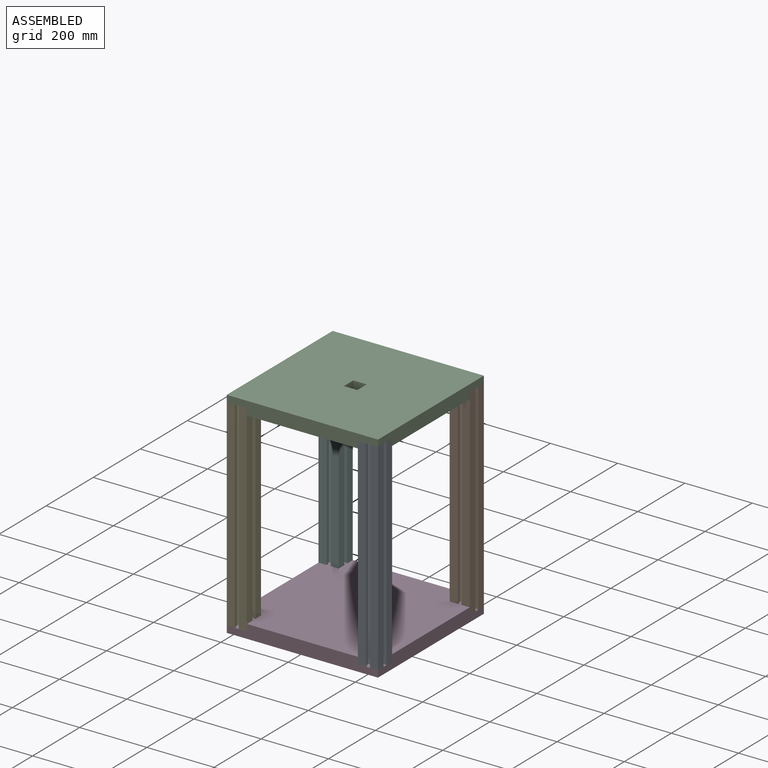
[diagram: assembled view]
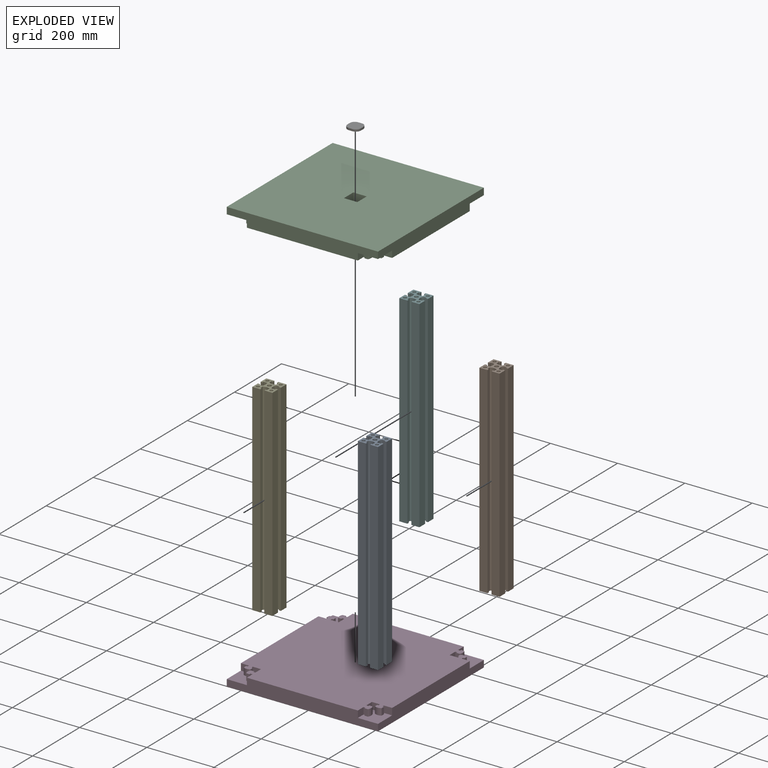
[diagram: exploded view]
GUIDED TOUR — MATED ASSEMBLY (Onshape document 71d08ee209d95e1a5b1e7e5a, AutoMate assembly 71d08ee209d95e1a5b1e7e5a_0065f6fbd1fd376b3fc1d47d_b340e007152930eded47f04c_default)

This assembly has 7 components, labeled P0..P6 below (a component is one placed occurrence of a part; the same part can appear more than once), held together by 18 mates. A mate is a constraint between two components; its type names the relative motion it leaves free:
  PARALLEL — keeps the two listed directions parallel,
  PLANAR — leaves sliding in the plane through the listed point (normal = the listed direction) and rotation about that normal free,
  SLIDER — leaves translation along the listed axis free.
Axis/direction vectors are unit vectors and 'through' points are millimeter coordinates, both in the assembly's world frame.

MATES
  1. PLANAR "Planar 2": P4 <-> P3, direction (0.000, 1.000, 0.000) through (-177.00, -165.00, 280.00) mm
  2. PLANAR "Planar 5": P0 <-> P3, direction (0.000, 1.000, 0.000) through (213.00, -165.00, 280.00) mm
  3. PLANAR "Planar 8": P1 <-> P3, direction (0.000, -1.000, 0.000) through (177.00, 165.00, 280.00) mm
  4. PLANAR "Planar 13": P2 <-> P4, direction (0.000, 0.000, -1.000) through (-197.08, -197.08, 580.00) mm
  5. PLANAR "Planar 16": P4 <-> P3, direction (0.000, 0.000, -1.000) through (-195.00, -195.00, -20.00) mm
  6. PLANAR "Planar 11": P5 <-> P3, direction (0.000, -1.000, 0.000) through (-213.00, 165.00, 280.00) mm
  7. PLANAR "Planar 14": P2 <-> P4, direction (-1.000, 0.000, 0.000) through (-165.00, -213.00, 570.00) mm
  8. PLANAR "Planar 17": P0 <-> P3, direction (0.000, 0.000, -1.000) through (195.00, -195.00, -20.00) mm
  9. SLIDER "Slider 1": P6 <-> P2, axis (0.000, 0.000, -1.000) through (0.00, 0.00, 570.90) mm
  10. PLANAR "Planar 1": P6 <-> P2, direction (0.000, 0.000, -1.000) through (0.00, 0.00, 570.00) mm
  11. PLANAR "Planar 9": P1 <-> P3, direction (-1.000, 0.000, 0.000) through (165.00, 213.00, 280.00) mm
  12. PLANAR "Planar 19": P5 <-> P3, direction (0.000, 0.000, -1.000) through (-195.00, 195.00, -20.00) mm
  13. PLANAR "Planar 3": P4 <-> P3, direction (1.000, 0.000, 0.000) through (-165.00, -213.00, 280.00) mm
  14. PLANAR "Planar 15": P2 <-> P4, direction (0.000, -1.000, 0.000) through (-213.00, -165.00, 570.00) mm
  15. PARALLEL "Parallel 1": P2 <-> P5, direction (0.000, 0.000, -1.000) through (-197.08, -197.08, 580.00) mm
  16. PLANAR "Planar 6": P0 <-> P3, direction (-1.000, 0.000, 0.000) through (165.00, -213.00, 280.00) mm
  17. PLANAR "Planar 18": P1 <-> P3, direction (0.000, 0.000, -1.000) through (195.00, 195.00, -20.00) mm
  18. PLANAR "Planar 12": P5 <-> P3, direction (1.000, 0.000, 0.000) through (-165.00, 213.00, 280.00) mm

ASSEMBLY ORDER
  1. P0 — the base component [order heuristic]
  2. P4 — core [order heuristic]
  3. P1 — core [order heuristic]
  4. P5 — core [order heuristic]
  5. P2 — core [order heuristic]
  6. P6 [order verified]
  7. P3 [order verified]
Order-tag legend:
  [order verified] — this step's position reverses a verified removal order: the component was checked to insert without passing through the ones already placed.
  [order heuristic] — the first 5 components form the assembly's core: parts whose collision-free extraction could not be verified, listed in mate-graph order.

Of the 7 components, 7 carry the full construction recipe — the FeatureScript program that regenerates the part's solid from scratch; the rest are supplied as boundary geometry only.
Each toured component is shown spotlighted twice — in the assembled view, then in the exploded view, where a leader line traces a displaced component back to its assembled socket (saturated green if recipe-attached, orange if geometry-only; every other component desaturated gray) — followed by its recipe or geometry summary and the mates that hold it.
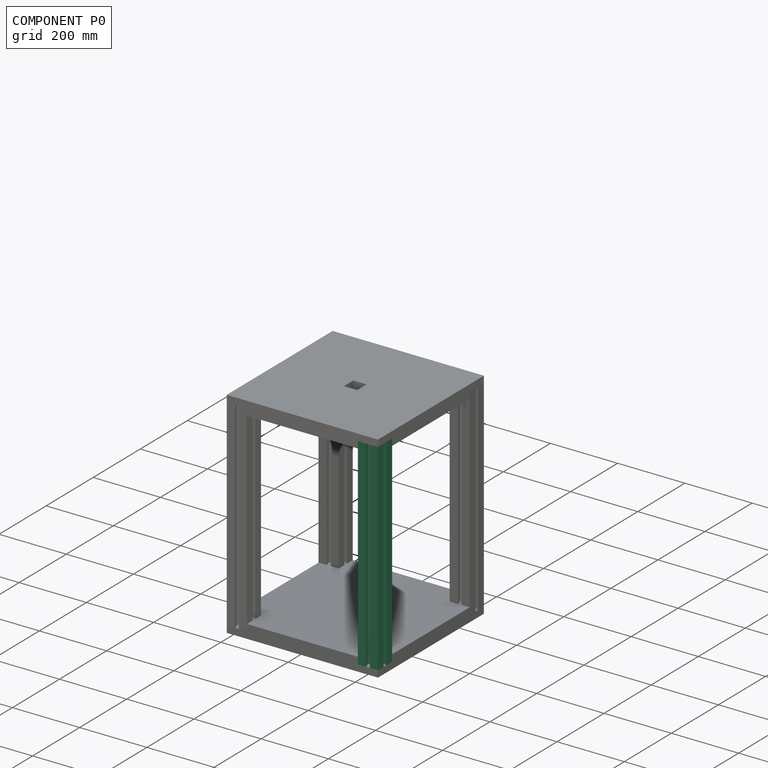
[diagram: component P0 — assembled]
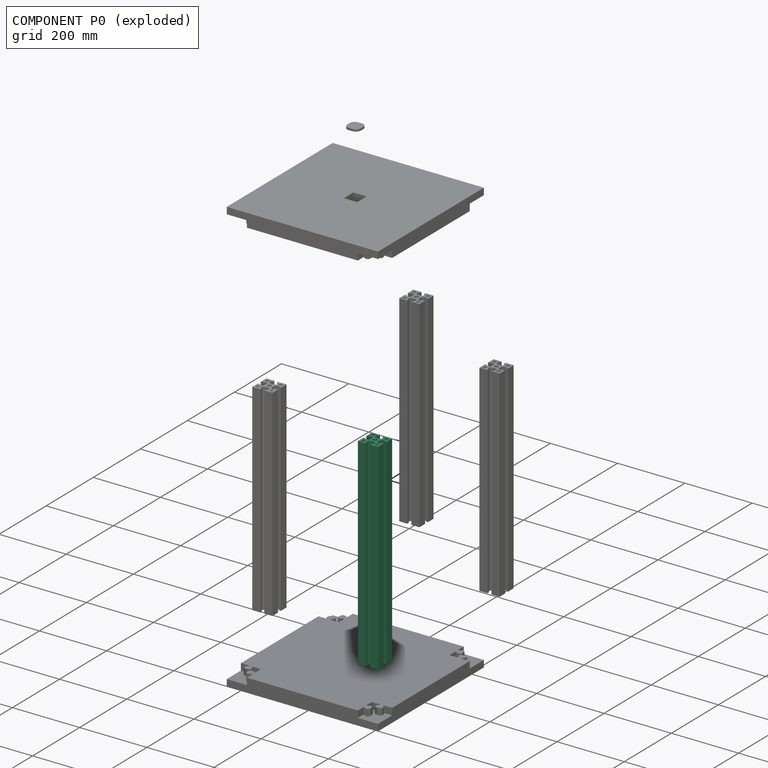
[diagram: component P0 — exploded]
COMPONENT P0 — recipe-attached (CADFS 00656253, mesh-verified: the recipe's output STEP matches this component's geometry to below the mesh-comparison resolution (tessellation chordal tolerance ~0.909 mm)).
Held by: PLANAR mate "Planar 5" to P3; PLANAR mate "Planar 17" to P3; PLANAR mate "Planar 6" to P3.
Construction recipe (FeatureScript — the CAD program that rebuilds this solid; sketch coordinates are in the units given by the * unit suffixes, e.g. mm):

FeatureScript 1511;
import(path : "onshape/std/geometry.fs", version : "1511.0");
import(path : "onshape/std/common.fs", version : "1511.0");
const mm = millimeter;
const VERTEX = EntityType.VERTEX;
const EDGE = EntityType.EDGE;
const FACE = EntityType.FACE;
const BODY = EntityType.BODY;
function v(x, y){return vector(x, y);}
function OD(order){return orderDisambiguation(order);}
function OSD(set){return originalSetDisambiguation(set);}
function TD(topology){return topologyDisambiguation(topology);}
function TDD(query){return trueDependencyDisambiguation(query);}
function sQuery(a, b, c) {return sketchEntityQuery(a, b, c);}

annotation { "Feature Type Name" : "Feature", "Feature Type Description" : "" }
export const myFeature = defineFeature(function(context is Context, id is Id, definition is map)
    precondition{}
    {
        {
            var Q0;
            Q0=qCreatedBy(makeId("Top.planeOp"),FACE);
            var sketch = newSketch(context, id + "F0", { "sketchPlane" : qUnion([Q0])});
            skLineSegment(sketch, "E0.bottom", {"start": v(30, 30) * mm, "end": v(6, 30) * mm});
            skLineSegment(sketch, "E0.top", {"start": v(30, -30) * mm, "end": v(6, -30) * mm});
            skLineSegment(sketch, "E0.left", {"start": v(30, 30) * mm, "end": v(30, 6) * mm});
            skLineSegment(sketch, "E0.right", {"start": v(-30, 30) * mm, "end": v(-30, 6) * mm});
            skPoint(sketch, "E0.middle", {"position": v(0, 0) * mm});
            skCircle(sketch, "E1", {"center": v(20, -20) * mm, "radius": 5 * mm});
            skCircle(sketch, "E2", {"center": v(20, 20) * mm, "radius": 5 * mm});
            skLineSegment(sketch, "E3", {"start": v(0, -30) * mm, "end": v(0, 30) * mm});
            skLineSegment(sketch, "E4", {"start": v(6, 30) * mm, "end": v(6, 24) * mm});
            skLineSegment(sketch, "E5", {"start": v(6, 24) * mm, "end": v(10, 24) * mm});
            skLineSegment(sketch, "E6", {"start": v(10, 24) * mm, "end": v(10, 14) * mm});
            skCircle(sketch, "E7", {"center": v(0, 0) * mm, "radius": 6 * mm});
            skLineSegment(sketch, "E8.MirrorCS", {"start": v(-6, 30) * mm, "end": v(-6, 24) * mm});
            skLineSegment(sketch, "E9.MirrorCS", {"start": v(-6, 24) * mm, "end": v(-10, 24) * mm});
            skLineSegment(sketch, "E10.MirrorCS", {"start": v(-10, 24) * mm, "end": v(-10, 14) * mm});
            skLineSegment(sketch, "E11.MirrorCS", {"start": v(-10, -24) * mm, "end": v(-10, -14) * mm});
            skArc(sketch, "E12.MirrorCS", {"start": v(-10, -14) * mm, "mid": v(0, -11.32) * mm, "end": v(10, -14) * mm});
            skLineSegment(sketch, "E13.MirrorCS", {"start": v(10, -24) * mm, "end": v(10, -14) * mm});
            skLineSegment(sketch, "E14.MirrorCS", {"start": v(6, -24) * mm, "end": v(10, -24) * mm});
            skLineSegment(sketch, "E15.MirrorCS", {"start": v(6, -30) * mm, "end": v(6, -24) * mm});
            skLineSegment(sketch, "E16.MirrorCS", {"start": v(-6, -30) * mm, "end": v(-6, -24) * mm});
            skLineSegment(sketch, "E17.MirrorCS", {"start": v(-6, -24) * mm, "end": v(-10, -24) * mm});
            skLineSegment(sketch, "E18.2.1", {"start": v(-30, 6) * mm, "end": v(-24, 6) * mm});
            skLineSegment(sketch, "E18.2.2", {"start": v(-24, 6) * mm, "end": v(-24, 10) * mm});
            skLineSegment(sketch, "E18.2.3", {"start": v(-24, 10) * mm, "end": v(-14, 10) * mm});
            skArc(sketch, "E18.2.4", {"start": v(-14, -10) * mm, "mid": v(-11.13, 0) * mm, "end": v(-14, 10) * mm});
            skLineSegment(sketch, "E18.2.5", {"start": v(-24, -10) * mm, "end": v(-14, -10) * mm});
            skLineSegment(sketch, "E18.2.6", {"start": v(-30, -6) * mm, "end": v(-24, -6) * mm});
            skLineSegment(sketch, "E18.2.7", {"start": v(-24, -6) * mm, "end": v(-24, -10) * mm});
            skLineSegment(sketch, "E19.MirrorCS", {"start": v(24, 10) * mm, "end": v(14, 10) * mm});
            skLineSegment(sketch, "E20.MirrorCS", {"start": v(30, 6) * mm, "end": v(24, 6) * mm});
            skLineSegment(sketch, "E21.MirrorCS", {"start": v(24, 6) * mm, "end": v(24, 10) * mm});
            skArc(sketch, "E22.MirrorCS", {"start": v(14, -10) * mm, "mid": v(11.13, 0) * mm, "end": v(14, 10) * mm});
            skLineSegment(sketch, "E23.MirrorCS", {"start": v(24, -10) * mm, "end": v(14, -10) * mm});
            skLineSegment(sketch, "E24.MirrorCS", {"start": v(24, -6) * mm, "end": v(24, -10) * mm});
            skLineSegment(sketch, "E25.MirrorCS", {"start": v(30, -6) * mm, "end": v(24, -6) * mm});
            skCircle(sketch, "E26.MirrorC", {"center": v(-20, -20) * mm, "radius": 5 * mm});
            skCircle(sketch, "E27.MirrorC", {"center": v(-20, 20) * mm, "radius": 5 * mm});
            skLineSegment(sketch, "E28.trimOffspring", {"start": v(-6, 30) * mm, "end": v(-30, 30) * mm});
            skLineSegment(sketch, "E29.trimOffspring", {"start": v(30, -6) * mm, "end": v(30, -30) * mm});
            skLineSegment(sketch, "E30.trimOffspring", {"start": v(-30, -6) * mm, "end": v(-30, -30) * mm});
            skLineSegment(sketch, "E31.trimOffspring", {"start": v(-6, -30) * mm, "end": v(-30, -30) * mm});
            skArc(sketch, "E32", {"start": v(-10, 14) * mm, "mid": v(0, 11.32) * mm, "end": v(10, 14) * mm});
            skSolve(sketch);
        }
        {
            var Q0;
            Q0=makeQuery(id+"F0.imprint","IMPRINT",FACE,{"disambiguationData":[TD([[makeQuery(id+"F0.imprint","IMPRINT",EDGE,{"derivedFrom":sQuery(id+"F0.wireOp",EDGE,"E0.bottom")}),1.0]])]});
            var Q1;
            Q1=makeQuery(id+"F0.imprint","IMPRINT",FACE,{"disambiguationData":[TD([[makeQuery(id+"F0.imprint","IMPRINT",EDGE,{"derivedFrom":sQuery(id+"F0.wireOp",EDGE,"E0.right")}),1.0]])]});
            extrude(context, id + "F1", {"entities" : qUnion([Q0, Q1]), "depth" : 600 * mm, "offsetDistance" : 25 * mm});
        }
    });
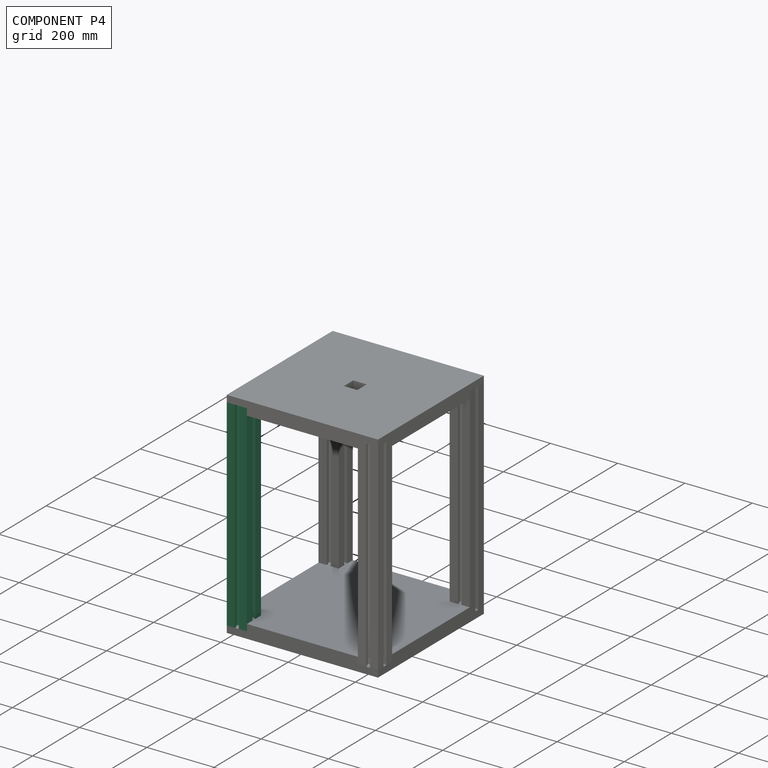
[diagram: component P4 — assembled]
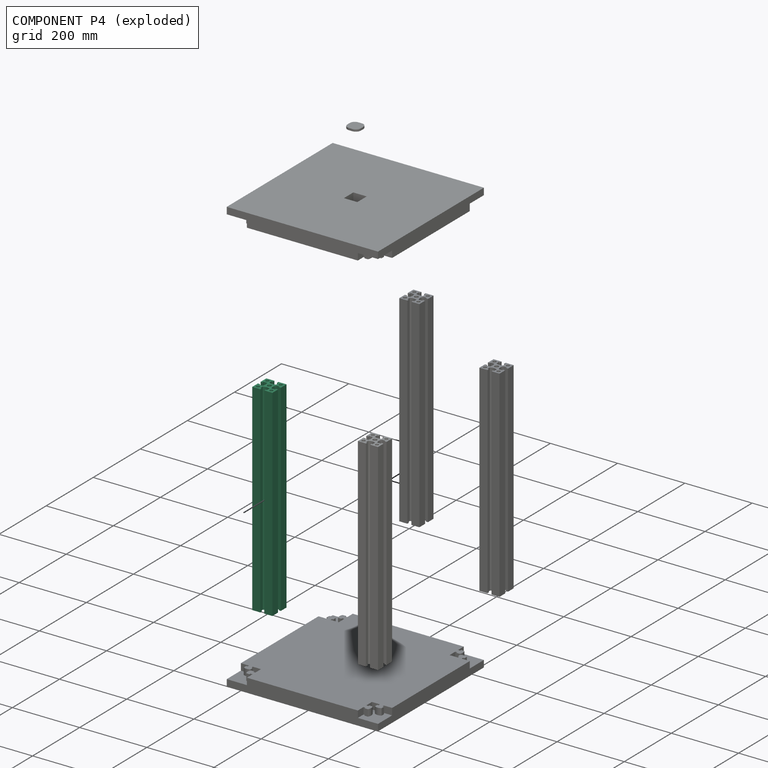
[diagram: component P4 — exploded]
COMPONENT P4 — same part as P0 (CADFS 00656253); its construction recipe is shown at P0.
Held by: PLANAR mate "Planar 2" to P3; PLANAR mate "Planar 13" to P2; PLANAR mate "Planar 16" to P3; PLANAR mate "Planar 14" to P2; PLANAR mate "Planar 3" to P3; PLANAR mate "Planar 15" to P2.
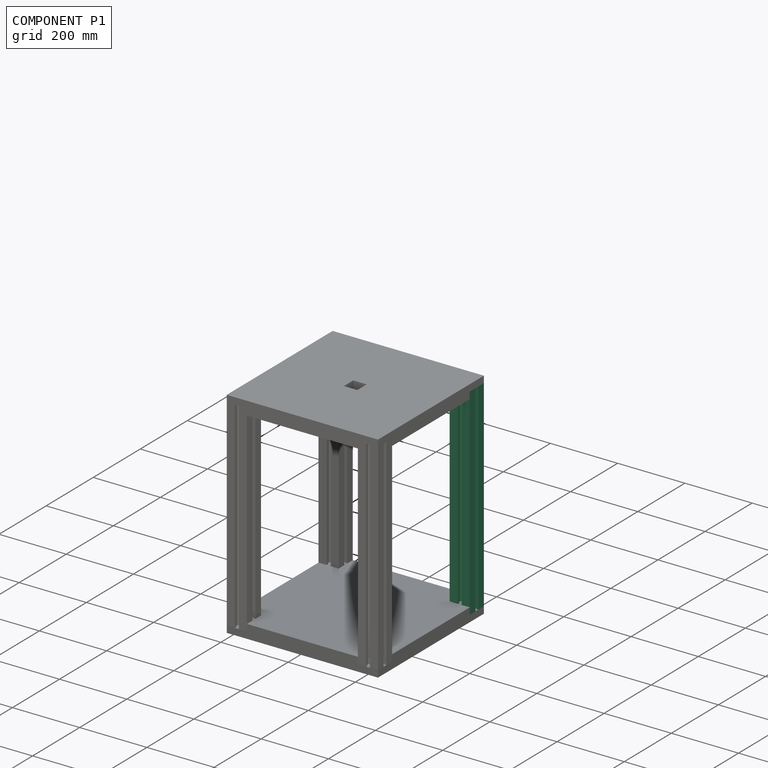
[diagram: component P1 — assembled]
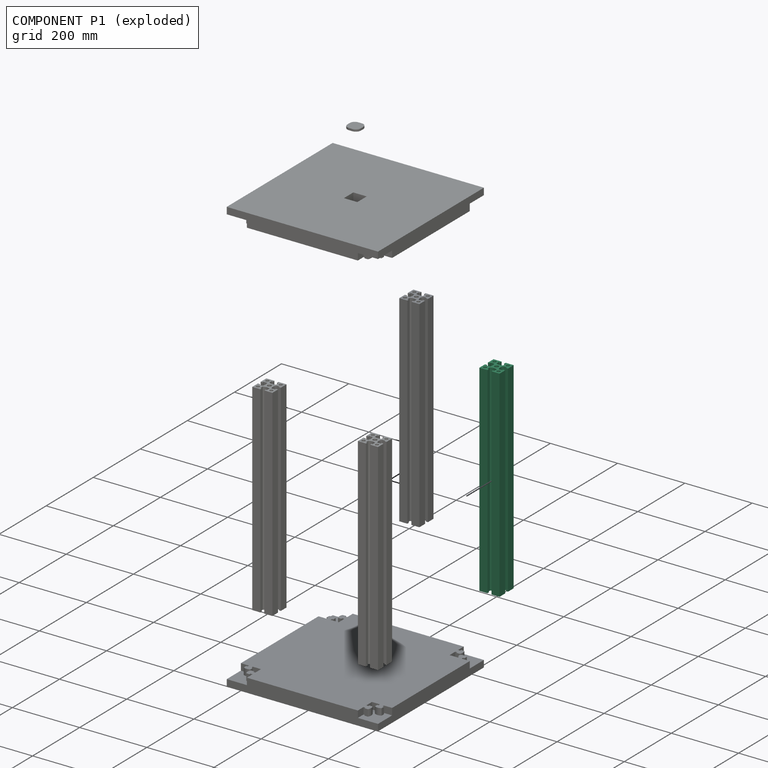
[diagram: component P1 — exploded]
COMPONENT P1 — same part as P0 (CADFS 00656253); its construction recipe is shown at P0.
Held by: PLANAR mate "Planar 8" to P3; PLANAR mate "Planar 9" to P3; PLANAR mate "Planar 18" to P3.
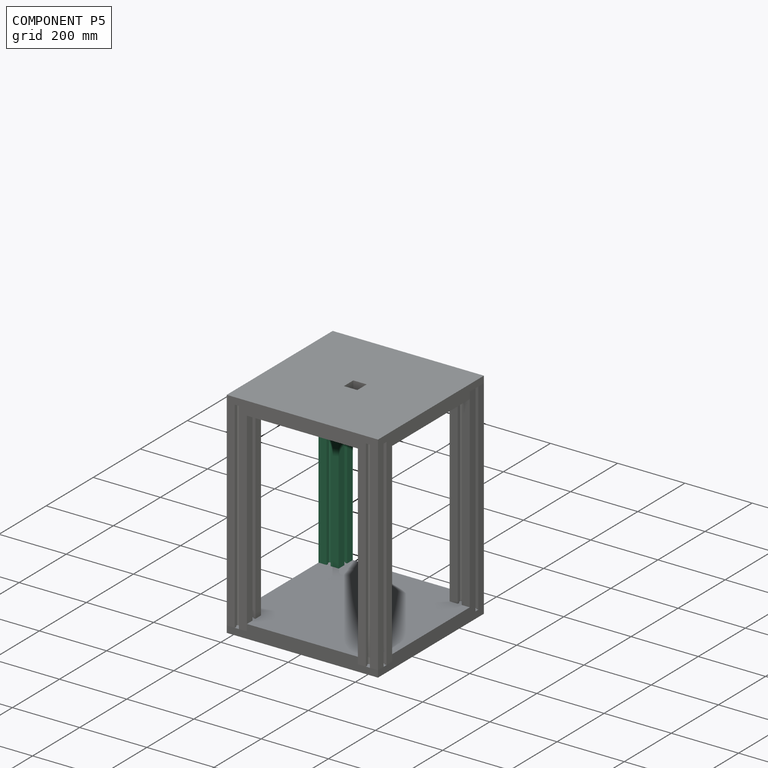
[diagram: component P5 — assembled]
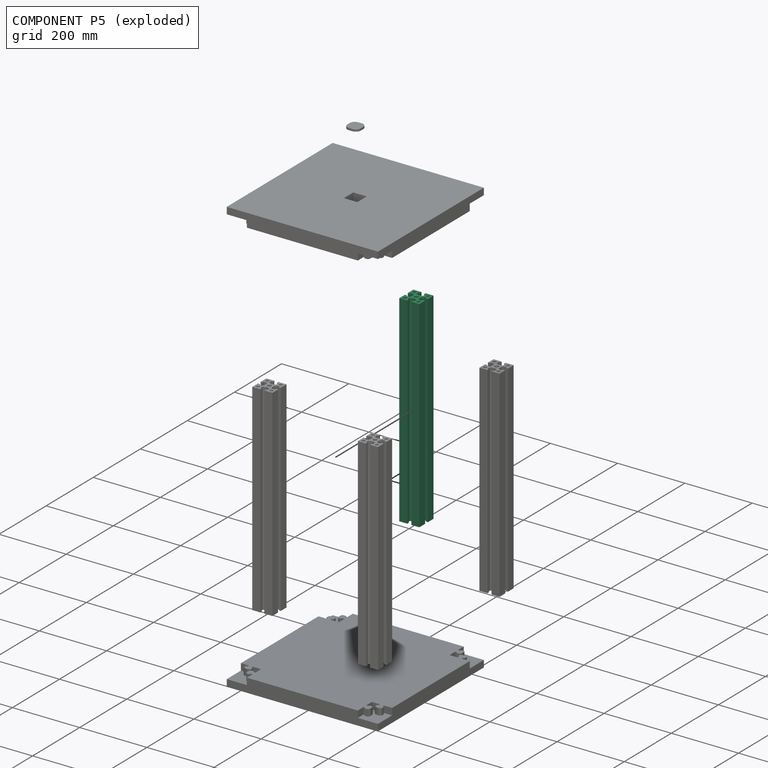
[diagram: component P5 — exploded]
COMPONENT P5 — same part as P0 (CADFS 00656253); its construction recipe is shown at P0.
Held by: PLANAR mate "Planar 11" to P3; PLANAR mate "Planar 19" to P3; PARALLEL mate "Parallel 1" to P2; PLANAR mate "Planar 12" to P3.
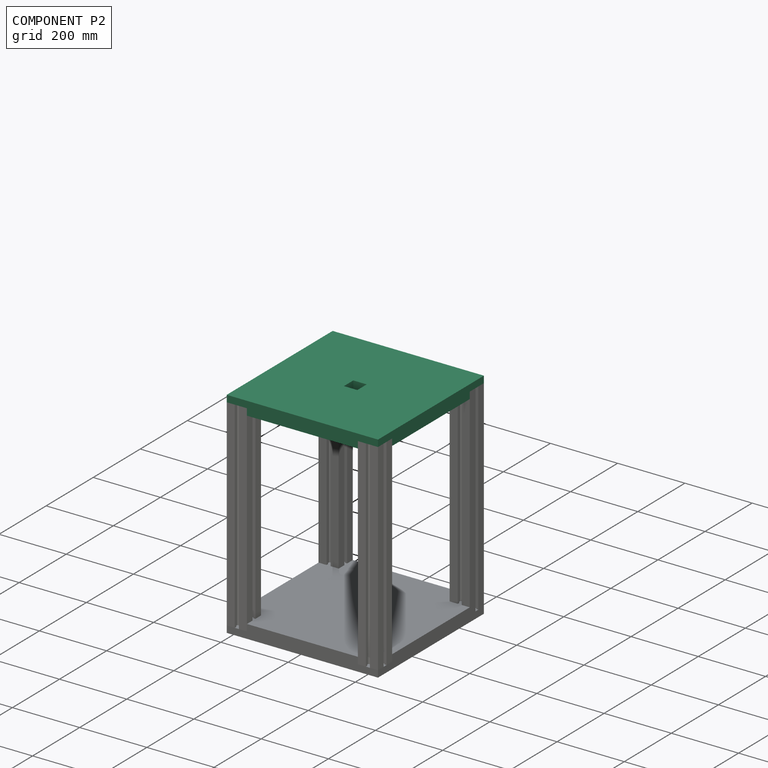
[diagram: component P2 — assembled]
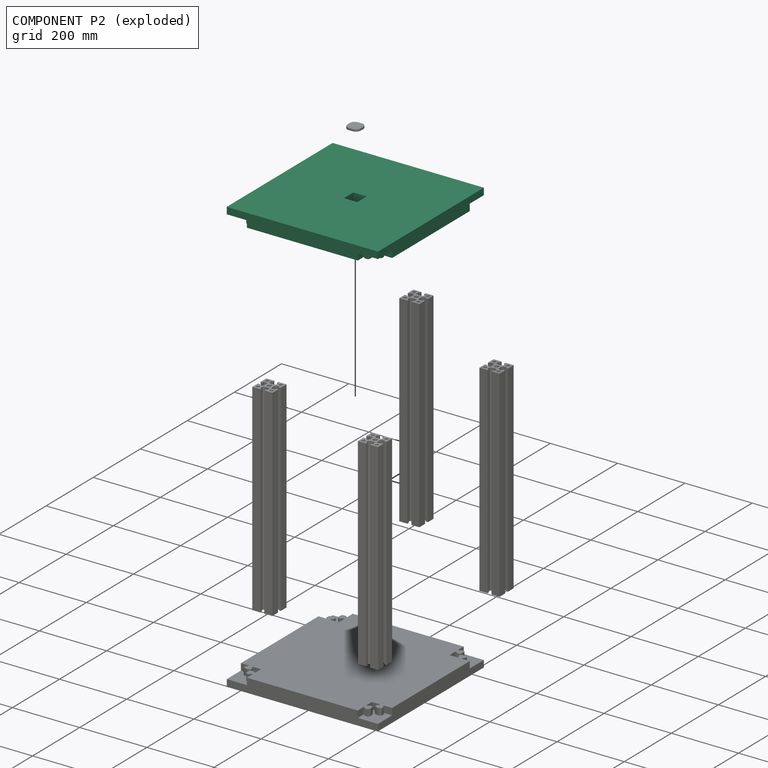
[diagram: component P2 — exploded]
COMPONENT P2 — recipe-attached (CADFS 00656255, mesh-verified: the recipe's output STEP matches this component's geometry to below the mesh-comparison resolution (tessellation chordal tolerance ~0.956 mm)).
Held by: PLANAR mate "Planar 13" to P4; PLANAR mate "Planar 14" to P4; SLIDER mate "Slider 1" to P6; PLANAR mate "Planar 1" to P6; PLANAR mate "Planar 15" to P4; PARALLEL mate "Parallel 1" to P5.
Construction recipe (FeatureScript — the CAD program that rebuilds this solid; sketch coordinates are in the units given by the * unit suffixes, e.g. mm):

FeatureScript 1511;
import(path : "onshape/std/geometry.fs", version : "1511.0");
import(path : "onshape/std/common.fs", version : "1511.0");
const mm = millimeter;
const VERTEX = EntityType.VERTEX;
const EDGE = EntityType.EDGE;
const FACE = EntityType.FACE;
const BODY = EntityType.BODY;
function v(x, y){return vector(x, y);}
function OD(order){return orderDisambiguation(order);}
function OSD(set){return originalSetDisambiguation(set);}
function TD(topology){return topologyDisambiguation(topology);}
function TDD(query){return trueDependencyDisambiguation(query);}
function sQuery(a, b, c) {return sketchEntityQuery(a, b, c);}

annotation { "Feature Type Name" : "Feature", "Feature Type Description" : "" }
export const myFeature = defineFeature(function(context is Context, id is Id, definition is map)
    precondition{}
    {
        {
            var Q0;
            Q0=qCreatedBy(makeId("Top.planeOp"),FACE);
            var sketch = newSketch(context, id + "F0", { "sketchPlane" : qUnion([Q0])});
            skLineSegment(sketch, "E0.bottom", {"start": v(225, 225) * mm, "end": v(-225, 225) * mm});
            skLineSegment(sketch, "E0.top", {"start": v(225, -225) * mm, "end": v(-225, -225) * mm});
            skLineSegment(sketch, "E0.left", {"start": v(225, 225) * mm, "end": v(225, -225) * mm});
            skLineSegment(sketch, "E0.right", {"start": v(-225, 225) * mm, "end": v(-225, -225) * mm});
            skPoint(sketch, "E0.middle", {"position": v(0, 0) * mm});
            skLineSegment(sketch, "E1", {"start": v(-225, 165) * mm, "end": v(-165, 165) * mm});
            skLineSegment(sketch, "E2", {"start": v(-165, 165) * mm, "end": v(-165, 225) * mm});
            skLineSegment(sketch, "E3.MirrorCS", {"start": v(-225, -165) * mm, "end": v(-165, -165) * mm});
            skLineSegment(sketch, "E4.MirrorCS", {"start": v(-165, -165) * mm, "end": v(-165, -225) * mm});
            skLineSegment(sketch, "E5.MirrorCS", {"start": v(165, 165) * mm, "end": v(165, 225) * mm});
            skLineSegment(sketch, "E6.MirrorCS", {"start": v(225, 165) * mm, "end": v(165, 165) * mm});
            skLineSegment(sketch, "E7.MirrorCS", {"start": v(225, -165) * mm, "end": v(165, -165) * mm});
            skLineSegment(sketch, "E8.MirrorCS", {"start": v(165, -165) * mm, "end": v(165, -225) * mm});
            skSolve(sketch);
        }
        {
            var Q0;
            {var subQ4=sQuery(id+"F0.wireOp",EDGE,"E1");Q0=makeQuery(id+"F0.imprint","IMPRINT",FACE,{"disambiguationData":[TD([[makeQuery(id+"F0.imprint","IMPRINT",EDGE,{"derivedFrom":subQ4}),-1.0]])]});}
            extrude(context, id + "F1", {"entities" : qUnion([Q0]), "depth" : 40 * mm, "offsetDistance" : 25 * mm});
        }
        {
            var Q0;
            Q0=makeQuery(id+"FjshT1yFeJQ6c4P_1.boolean.opBoolean","MERGE",FACE,{"derivedFrom":[makeQuery(id+"F1.opExtrude","CAP_FACE",FACE,{"disambiguationData":[OSD([sQuery(id+"F0.wireOp",EDGE,"E0.bottom"),sQuery(id+"F0.wireOp",EDGE,"E0.top"),sQuery(id+"F0.wireOp",EDGE,"E0.left"),sQuery(id+"F0.wireOp",EDGE,"E0.right"),sQuery(id+"F0.wireOp",EDGE,"E1"),sQuery(id+"F0.wireOp",EDGE,"E2"),sQuery(id+"F0.wireOp",EDGE,"E3.MirrorCS"),sQuery(id+"F0.wireOp",EDGE,"E4.MirrorCS"),sQuery(id+"F0.wireOp",EDGE,"E5.MirrorCS"),sQuery(id+"F0.wireOp",EDGE,"E6.MirrorCS"),sQuery(id+"F0.wireOp",EDGE,"E7.MirrorCS"),sQuery(id+"F0.wireOp",EDGE,"E8.MirrorCS")])],"isStart":false}),makeQuery(id+"FjshT1yFeJQ6c4P_1.opExtrude","CAP_FACE",FACE,{"disambiguationData":[OSD([sQuery(id+"FFJnwm880kq7QGe_1.wireOp",EDGE,"IpZQhXBL-CYih-avNn-Q1HJ-p8kexNwLDa1K"),sQuery(id+"FFJnwm880kq7QGe_1.wireOp",EDGE,"DlTROYIy-GDss-TSJb-fTrS-hMDKvWpxQDZU"),sQuery(id+"FFJnwm880kq7QGe_1.wireOp",EDGE,"bTENbA7q-pvXI-0GNu-Zogf-TinsMhO668xT"),sQuery(id+"FFJnwm880kq7QGe_1.wireOp",EDGE,"CV59ftxt-n5LR-UtjV-LxEI-1yjvkEDBIUn7"),sQuery(id+"FFJnwm880kq7QGe_1.wireOp",EDGE,"VoNmPI9z-NIw1-XeOp-dFSM-tXPidPHyete0"),sQuery(id+"FFJnwm880kq7QGe_1.wireOp",EDGE,"zehCizCF-2Cgd-Ufk7-S7Fe-3zTjVviyliAL"),sQuery(id+"FFJnwm880kq7QGe_1.wireOp",EDGE,"YVxsESHW-nWeJ-Wa03-N7XI-iGOGesEvdSq9"),sQuery(id+"FFJnwm880kq7QGe_1.wireOp",EDGE,"igbJnYST-q3vv-sdNJ-N0c4-YNNVs6zLT43V")])],"isStart":true}),makeQuery(id+"FjshT1yFeJQ6c4P_1.opExtrude","CAP_FACE",FACE,{"disambiguationData":[OSD([sQuery(id+"FFJnwm880kq7QGe_1.wireOp",EDGE,"N9AVfqYu-QtxK-6Ad7-DoZk-YeEwseCOC2Zx"),sQuery(id+"FFJnwm880kq7QGe_1.wireOp",EDGE,"2Zl7s7qh-2swf-lT0q-C8q8-jJXlbCIyUqga"),sQuery(id+"FFJnwm880kq7QGe_1.wireOp",EDGE,"SRCtbRJ9-xsi2-BQLM-Kzfs-NWcCmin3xKqc"),sQuery(id+"FFJnwm880kq7QGe_1.wireOp",EDGE,"xzpgzOg8-CJKq-86Ur-ihYN-3kbHdTykDBMx"),sQuery(id+"FFJnwm880kq7QGe_1.wireOp",EDGE,"zk2CsXnC-Ixh2-XMb2-uvDl-uLO2pCno7BXc"),sQuery(id+"FFJnwm880kq7QGe_1.wireOp",EDGE,"CIBMmwUG-xv2f-loSl-yw3Y-bWYX4MdVKxOO"),sQuery(id+"FFJnwm880kq7QGe_1.wireOp",EDGE,"J3gLb0Dn-fx33-QdcY-Dk9k-6gqs1iTMeHvz"),sQuery(id+"FFJnwm880kq7QGe_1.wireOp",EDGE,"XjeUeEMd-u2qN-USpv-2rTC-nAQxEtihIGgS")])],"isStart":true}),makeQuery(id+"FjshT1yFeJQ6c4P_1.opExtrude","CAP_FACE",FACE,{"disambiguationData":[OSD([sQuery(id+"FFJnwm880kq7QGe_1.wireOp",EDGE,"395ac73a-eb74-4218-a785-b9fae4ec757f.1.0"),sQuery(id+"FFJnwm880kq7QGe_1.wireOp",EDGE,"395ac73a-eb74-4218-a785-b9fae4ec757f.1.1"),sQuery(id+"FFJnwm880kq7QGe_1.wireOp",EDGE,"395ac73a-eb74-4218-a785-b9fae4ec757f.1.2"),sQuery(id+"FFJnwm880kq7QGe_1.wireOp",EDGE,"395ac73a-eb74-4218-a785-b9fae4ec757f.1.3"),sQuery(id+"FFJnwm880kq7QGe_1.wireOp",EDGE,"395ac73a-eb74-4218-a785-b9fae4ec757f.1.4"),sQuery(id+"FFJnwm880kq7QGe_1.wireOp",EDGE,"395ac73a-eb74-4218-a785-b9fae4ec757f.1.5"),sQuery(id+"FFJnwm880kq7QGe_1.wireOp",EDGE,"395ac73a-eb74-4218-a785-b9fae4ec757f.1.6"),sQuery(id+"FFJnwm880kq7QGe_1.wireOp",EDGE,"395ac73a-eb74-4218-a785-b9fae4ec757f.1.7")])],"isStart":true}),makeQuery(id+"FjshT1yFeJQ6c4P_1.opExtrude","CAP_FACE",FACE,{"disambiguationData":[OSD([sQuery(id+"FFJnwm880kq7QGe_1.wireOp",EDGE,"395ac73a-eb74-4218-a785-b9fae4ec757f.1.8"),sQuery(id+"FFJnwm880kq7QGe_1.wireOp",EDGE,"395ac73a-eb74-4218-a785-b9fae4ec757f.1.9"),sQuery(id+"FFJnwm880kq7QGe_1.wireOp",EDGE,"395ac73a-eb74-4218-a785-b9fae4ec757f.1.10"),sQuery(id+"FFJnwm880kq7QGe_1.wireOp",EDGE,"395ac73a-eb74-4218-a785-b9fae4ec757f.1.11"),sQuery(id+"FFJnwm880kq7QGe_1.wireOp",EDGE,"395ac73a-eb74-4218-a785-b9fae4ec757f.1.12"),sQuery(id+"FFJnwm880kq7QGe_1.wireOp",EDGE,"395ac73a-eb74-4218-a785-b9fae4ec757f.1.13"),sQuery(id+"FFJnwm880kq7QGe_1.wireOp",EDGE,"395ac73a-eb74-4218-a785-b9fae4ec757f.1.14"),sQuery(id+"FFJnwm880kq7QGe_1.wireOp",EDGE,"395ac73a-eb74-4218-a785-b9fae4ec757f.1.15")])],"isStart":true}),makeQuery(id+"FjshT1yFeJQ6c4P_1.opExtrude","CAP_FACE",FACE,{"disambiguationData":[OSD([sQuery(id+"FFJnwm880kq7QGe_1.wireOp",EDGE,"395ac73a-eb74-4218-a785-b9fae4ec757f.2.0"),sQuery(id+"FFJnwm880kq7QGe_1.wireOp",EDGE,"395ac73a-eb74-4218-a785-b9fae4ec757f.2.1"),sQuery(id+"FFJnwm880kq7QGe_1.wireOp",EDGE,"395ac73a-eb74-4218-a785-b9fae4ec757f.2.2"),sQuery(id+"FFJnwm880kq7QGe_1.wireOp",EDGE,"395ac73a-eb74-4218-a785-b9fae4ec757f.2.3"),sQuery(id+"FFJnwm880kq7QGe_1.wireOp",EDGE,"395ac73a-eb74-4218-a785-b9fae4ec757f.2.4"),sQuery(id+"FFJnwm880kq7QGe_1.wireOp",EDGE,"395ac73a-eb74-4218-a785-b9fae4ec757f.2.5"),sQuery(id+"FFJnwm880kq7QGe_1.wireOp",EDGE,"395ac73a-eb74-4218-a785-b9fae4ec757f.2.6"),sQuery(id+"FFJnwm880kq7QGe_1.wireOp",EDGE,"395ac73a-eb74-4218-a785-b9fae4ec757f.2.7")])],"isStart":true}),makeQuery(id+"FjshT1yFeJQ6c4P_1.opExtrude","CAP_FACE",FACE,{"disambiguationData":[OSD([sQuery(id+"FFJnwm880kq7QGe_1.wireOp",EDGE,"395ac73a-eb74-4218-a785-b9fae4ec757f.2.8"),sQuery(id+"FFJnwm880kq7QGe_1.wireOp",EDGE,"395ac73a-eb74-4218-a785-b9fae4ec757f.2.9"),sQuery(id+"FFJnwm880kq7QGe_1.wireOp",EDGE,"395ac73a-eb74-4218-a785-b9fae4ec757f.2.10"),sQuery(id+"FFJnwm880kq7QGe_1.wireOp",EDGE,"395ac73a-eb74-4218-a785-b9fae4ec757f.2.11"),sQuery(id+"FFJnwm880kq7QGe_1.wireOp",EDGE,"395ac73a-eb74-4218-a785-b9fae4ec757f.2.12"),sQuery(id+"FFJnwm880kq7QGe_1.wireOp",EDGE,"395ac73a-eb74-4218-a785-b9fae4ec757f.2.13"),sQuery(id+"FFJnwm880kq7QGe_1.wireOp",EDGE,"395ac73a-eb74-4218-a785-b9fae4ec757f.2.14"),sQuery(id+"FFJnwm880kq7QGe_1.wireOp",EDGE,"395ac73a-eb74-4218-a785-b9fae4ec757f.2.15")])],"isStart":true}),makeQuery(id+"FjshT1yFeJQ6c4P_1.opExtrude","CAP_FACE",FACE,{"disambiguationData":[OSD([sQuery(id+"FFJnwm880kq7QGe_1.wireOp",EDGE,"395ac73a-eb74-4218-a785-b9fae4ec757f.3.0"),sQuery(id+"FFJnwm880kq7QGe_1.wireOp",EDGE,"395ac73a-eb74-4218-a785-b9fae4ec757f.3.1"),sQuery(id+"FFJnwm880kq7QGe_1.wireOp",EDGE,"395ac73a-eb74-4218-a785-b9fae4ec757f.3.2"),sQuery(id+"FFJnwm880kq7QGe_1.wireOp",EDGE,"395ac73a-eb74-4218-a785-b9fae4ec757f.3.3"),sQuery(id+"FFJnwm880kq7QGe_1.wireOp",EDGE,"395ac73a-eb74-4218-a785-b9fae4ec757f.3.4"),sQuery(id+"FFJnwm880kq7QGe_1.wireOp",EDGE,"395ac73a-eb74-4218-a785-b9fae4ec757f.3.5"),sQuery(id+"FFJnwm880kq7QGe_1.wireOp",EDGE,"395ac73a-eb74-4218-a785-b9fae4ec757f.3.6"),sQuery(id+"FFJnwm880kq7QGe_1.wireOp",EDGE,"395ac73a-eb74-4218-a785-b9fae4ec757f.3.7")])],"isStart":true}),makeQuery(id+"FjshT1yFeJQ6c4P_1.opExtrude","CAP_FACE",FACE,{"disambiguationData":[OSD([sQuery(id+"FFJnwm880kq7QGe_1.wireOp",EDGE,"395ac73a-eb74-4218-a785-b9fae4ec757f.3.8"),sQuery(id+"FFJnwm880kq7QGe_1.wireOp",EDGE,"395ac73a-eb74-4218-a785-b9fae4ec757f.3.9"),sQuery(id+"FFJnwm880kq7QGe_1.wireOp",EDGE,"395ac73a-eb74-4218-a785-b9fae4ec757f.3.10"),sQuery(id+"FFJnwm880kq7QGe_1.wireOp",EDGE,"395ac73a-eb74-4218-a785-b9fae4ec757f.3.11"),sQuery(id+"FFJnwm880kq7QGe_1.wireOp",EDGE,"395ac73a-eb74-4218-a785-b9fae4ec757f.3.12"),sQuery(id+"FFJnwm880kq7QGe_1.wireOp",EDGE,"395ac73a-eb74-4218-a785-b9fae4ec757f.3.13"),sQuery(id+"FFJnwm880kq7QGe_1.wireOp",EDGE,"395ac73a-eb74-4218-a785-b9fae4ec757f.3.14"),sQuery(id+"FFJnwm880kq7QGe_1.wireOp",EDGE,"395ac73a-eb74-4218-a785-b9fae4ec757f.3.15")])],"isStart":true})]});
            var sketch = newSketch(context, id + "F2", { "sketchPlane" : qUnion([Q0])});
            skSolve(sketch);
        }
        {
            var Q0;
            Q0 = qSketchRegion(id + "F0", true);
            extrude(context, id + "F3", {"entities" : qUnion([Q0]), "operationType" : NewBodyOperationType.ADD, "depth" : 20 * mm, "offsetDistance" : 25 * mm});
        }
        {
            var Q0;
            Q0=makeQuery(id+"F2.imprint","IMPRINT",FACE,{"disambiguationData":[TD([[makeQuery(id+"F2.imprint","IMPRINT",EDGE,{"derivedFrom":makeQuery(id+"F1.opExtrude","CAP_EDGE",EDGE,{"disambiguationData":[OSD([sQuery(id+"F0.wireOp",EDGE,"E0.bottom")])],"isStart":false})}),1.0]])]});
            var sketch = newSketch(context, id + "F4", { "sketchPlane" : qUnion([Q0])});
            skLineSegment(sketch, "E9", {"start": v(-201, 165) * mm, "end": v(-201, 171) * mm});
            skLineSegment(sketch, "E10", {"start": v(-201, 171) * mm, "end": v(-205, 171) * mm});
            skLineSegment(sketch, "E11", {"start": v(-205, 171) * mm, "end": v(-205, 181) * mm});
            skLineSegment(sketch, "E12", {"start": v(-189, 165) * mm, "end": v(-189, 171) * mm});
            skLineSegment(sketch, "E13", {"start": v(-189, 171) * mm, "end": v(-185, 171) * mm});
            skLineSegment(sketch, "E14", {"start": v(-185, 171) * mm, "end": v(-185, 181) * mm});
            skLineSegment(sketch, "E15", {"start": v(-165, 189) * mm, "end": v(-171, 189) * mm});
            skLineSegment(sketch, "E16", {"start": v(-201, 165) * mm, "end": v(-189, 165) * mm});
            skArc(sketch, "E17", {"start": v(-185, 181) * mm, "mid": v(-195, 183.68) * mm, "end": v(-205, 181) * mm});
            skLineSegment(sketch, "E18", {"start": v(-165, 201) * mm, "end": v(-171, 201) * mm});
            skLineSegment(sketch, "E19", {"start": v(-171, 201) * mm, "end": v(-171, 205) * mm});
            skLineSegment(sketch, "E20", {"start": v(-171, 205) * mm, "end": v(-181, 205) * mm});
            skLineSegment(sketch, "E21", {"start": v(-171, 189) * mm, "end": v(-171, 185) * mm});
            skLineSegment(sketch, "E22", {"start": v(-171, 185) * mm, "end": v(-181, 185) * mm});
            skLineSegment(sketch, "E23", {"start": v(-165, 201) * mm, "end": v(-165, 189) * mm});
            skArc(sketch, "E24", {"start": v(-181, 205) * mm, "mid": v(-183.68, 195) * mm, "end": v(-181, 185) * mm});
            skLineSegment(sketch, "E25.1.0", {"start": v(-185, -171) * mm, "end": v(-185, -181) * mm});
            skArc(sketch, "E25.1.1", {"start": v(-205, -181) * mm, "mid": v(-195, -183.68) * mm, "end": v(-185, -181) * mm});
            skLineSegment(sketch, "E25.1.2", {"start": v(-171, -205) * mm, "end": v(-181, -205) * mm});
            skLineSegment(sketch, "E25.1.3", {"start": v(-171, -185) * mm, "end": v(-181, -185) * mm});
            skArc(sketch, "E25.1.4", {"start": v(-181, -185) * mm, "mid": v(-183.68, -195) * mm, "end": v(-181, -205) * mm});
            skLineSegment(sketch, "E25.1.5", {"start": v(-205, -171) * mm, "end": v(-205, -181) * mm});
            skLineSegment(sketch, "E25.1.6", {"start": v(-201, -165) * mm, "end": v(-189, -165) * mm});
            skLineSegment(sketch, "E25.1.7", {"start": v(-165, -201) * mm, "end": v(-165, -189) * mm});
            skLineSegment(sketch, "E25.1.8", {"start": v(-165, -201) * mm, "end": v(-171, -201) * mm});
            skLineSegment(sketch, "E25.1.9", {"start": v(-171, -201) * mm, "end": v(-171, -205) * mm});
            skLineSegment(sketch, "E25.1.10", {"start": v(-165, -189) * mm, "end": v(-171, -189) * mm});
            skLineSegment(sketch, "E25.1.11", {"start": v(-171, -189) * mm, "end": v(-171, -185) * mm});
            skLineSegment(sketch, "E25.1.12", {"start": v(-189, -165) * mm, "end": v(-189, -171) * mm});
            skLineSegment(sketch, "E25.1.13", {"start": v(-201, -165) * mm, "end": v(-201, -171) * mm});
            skLineSegment(sketch, "E25.1.14", {"start": v(-201, -171) * mm, "end": v(-205, -171) * mm});
            skLineSegment(sketch, "E25.1.15", {"start": v(-189, -171) * mm, "end": v(-185, -171) * mm});
            skLineSegment(sketch, "E25.2.0", {"start": v(171, -185) * mm, "end": v(181, -185) * mm});
            skArc(sketch, "E25.2.1", {"start": v(181, -205) * mm, "mid": v(183.68, -195) * mm, "end": v(181, -185) * mm});
            skLineSegment(sketch, "E25.2.2", {"start": v(205, -171) * mm, "end": v(205, -181) * mm});
            skLineSegment(sketch, "E25.2.3", {"start": v(185, -171) * mm, "end": v(185, -181) * mm});
            skArc(sketch, "E25.2.4", {"start": v(185, -181) * mm, "mid": v(195, -183.68) * mm, "end": v(205, -181) * mm});
            skLineSegment(sketch, "E25.2.5", {"start": v(171, -205) * mm, "end": v(181, -205) * mm});
            skLineSegment(sketch, "E25.2.6", {"start": v(165, -201) * mm, "end": v(165, -189) * mm});
            skLineSegment(sketch, "E25.2.7", {"start": v(201, -165) * mm, "end": v(189, -165) * mm});
            skLineSegment(sketch, "E25.2.8", {"start": v(201, -165) * mm, "end": v(201, -171) * mm});
            skLineSegment(sketch, "E25.2.9", {"start": v(201, -171) * mm, "end": v(205, -171) * mm});
            skLineSegment(sketch, "E25.2.10", {"start": v(189, -165) * mm, "end": v(189, -171) * mm});
            skLineSegment(sketch, "E25.2.11", {"start": v(189, -171) * mm, "end": v(185, -171) * mm});
            skLineSegment(sketch, "E25.2.12", {"start": v(165, -189) * mm, "end": v(171, -189) * mm});
            skLineSegment(sketch, "E25.2.13", {"start": v(165, -201) * mm, "end": v(171, -201) * mm});
            skLineSegment(sketch, "E25.2.14", {"start": v(171, -201) * mm, "end": v(171, -205) * mm});
            skLineSegment(sketch, "E25.2.15", {"start": v(171, -189) * mm, "end": v(171, -185) * mm});
            skLineSegment(sketch, "E25.3.0", {"start": v(185, 171) * mm, "end": v(185, 181) * mm});
            skArc(sketch, "E25.3.1", {"start": v(205, 181) * mm, "mid": v(195, 183.68) * mm, "end": v(185, 181) * mm});
            skLineSegment(sketch, "E25.3.2", {"start": v(171, 205) * mm, "end": v(181, 205) * mm});
            skLineSegment(sketch, "E25.3.3", {"start": v(171, 185) * mm, "end": v(181, 185) * mm});
            skArc(sketch, "E25.3.4", {"start": v(181, 185) * mm, "mid": v(183.68, 195) * mm, "end": v(181, 205) * mm});
            skLineSegment(sketch, "E25.3.5", {"start": v(205, 171) * mm, "end": v(205, 181) * mm});
            skLineSegment(sketch, "E25.3.6", {"start": v(201, 165) * mm, "end": v(189, 165) * mm});
            skLineSegment(sketch, "E25.3.7", {"start": v(165, 201) * mm, "end": v(165, 189) * mm});
            skLineSegment(sketch, "E25.3.8", {"start": v(165, 201) * mm, "end": v(171, 201) * mm});
            skLineSegment(sketch, "E25.3.9", {"start": v(171, 201) * mm, "end": v(171, 205) * mm});
            skLineSegment(sketch, "E25.3.10", {"start": v(165, 189) * mm, "end": v(171, 189) * mm});
            skLineSegment(sketch, "E25.3.11", {"start": v(171, 189) * mm, "end": v(171, 185) * mm});
            skLineSegment(sketch, "E25.3.12", {"start": v(189, 165) * mm, "end": v(189, 171) * mm});
            skLineSegment(sketch, "E25.3.13", {"start": v(201, 165) * mm, "end": v(201, 171) * mm});
            skLineSegment(sketch, "E25.3.14", {"start": v(201, 171) * mm, "end": v(205, 171) * mm});
            skLineSegment(sketch, "E25.3.15", {"start": v(189, 171) * mm, "end": v(185, 171) * mm});
            skPoint(sketch, "E25.center", {"position": v(0, 0) * mm});
            skSolve(sketch);
        }
        {
            var Q0;
            Q0=makeQuery(id+"F4.imprint","IMPRINT",FACE,{"disambiguationData":[TD([[makeQuery(id+"F4.imprint","IMPRINT",EDGE,{"derivedFrom":sQuery(id+"F4.wireOp",EDGE,"E9")}),-1.0]])]});
            var Q1;
            Q1=makeQuery(id+"F4.imprint","IMPRINT",FACE,{"disambiguationData":[TD([[makeQuery(id+"F4.imprint","IMPRINT",EDGE,{"derivedFrom":sQuery(id+"F4.wireOp",EDGE,"E15")}),-1.0]])]});
            var Q2;
            Q2=makeQuery(id+"F4.imprint","IMPRINT",FACE,{"disambiguationData":[TD([[makeQuery(id+"F4.imprint","IMPRINT",EDGE,{"derivedFrom":sQuery(id+"F4.wireOp",EDGE,"E25.3.2")}),-1.0]])]});
            var Q3;
            Q3=makeQuery(id+"F4.imprint","IMPRINT",FACE,{"disambiguationData":[TD([[makeQuery(id+"F4.imprint","IMPRINT",EDGE,{"derivedFrom":sQuery(id+"F4.wireOp",EDGE,"E25.3.0")}),-1.0]])]});
            var Q4;
            Q4=makeQuery(id+"F4.imprint","IMPRINT",FACE,{"disambiguationData":[TD([[makeQuery(id+"F4.imprint","IMPRINT",EDGE,{"derivedFrom":sQuery(id+"F4.wireOp",EDGE,"E25.1.2")}),-1.0]])]});
            var Q5;
            Q5=makeQuery(id+"F4.imprint","IMPRINT",FACE,{"disambiguationData":[TD([[makeQuery(id+"F4.imprint","IMPRINT",EDGE,{"derivedFrom":sQuery(id+"F4.wireOp",EDGE,"E25.1.0")}),-1.0]])]});
            var Q6;
            Q6=makeQuery(id+"F4.imprint","IMPRINT",FACE,{"disambiguationData":[TD([[makeQuery(id+"F4.imprint","IMPRINT",EDGE,{"derivedFrom":sQuery(id+"F4.wireOp",EDGE,"E25.2.2")}),-1.0]])]});
            var Q7;
            Q7=makeQuery(id+"F4.imprint","IMPRINT",FACE,{"disambiguationData":[TD([[makeQuery(id+"F4.imprint","IMPRINT",EDGE,{"derivedFrom":sQuery(id+"F4.wireOp",EDGE,"E25.2.0")}),-1.0]])]});
            var Q8;
            {var subQ0=sQuery(id+"F0.wireOp",EDGE,"E0.right");var subQ1=sQuery(id+"F0.wireOp",EDGE,"E0.top");Q8=makeQuery(id+"F3.boolean.opBoolean","SPLIT",FACE,{"disambiguationData":[TD([makeQuery(id+"F1.opExtrude","SWEPT_FACE",FACE,{"disambiguationData":[OSD([sQuery(id+"F0.wireOp",EDGE,"E3.MirrorCS")])]})])],"derivedFrom":makeQuery(id+"F3.opExtrude","CAP_FACE",FACE,{"disambiguationData":[OSD([sQuery(id+"F0.wireOp",EDGE,"E0.bottom"),subQ1,sQuery(id+"F0.wireOp",EDGE,"E0.left"),subQ0])],"isStart":false})});}
            extrude(context, id + "F5", {"entities" : qUnion([Q0, Q1, Q2, Q3, Q4, Q5, Q6, Q7]), "operationType" : NewBodyOperationType.ADD, "endBound" : BoundingType.UP_TO_SURFACE, "oppositeDirection" : true, "depth" : 25 * mm, "endBoundEntityFace" : qUnion([Q8]), "offsetDistance" : 25 * mm});
        }
        {
            var Q0;
            {var subQ0=sQuery(id+"F0.wireOp",EDGE,"E0.right");var subQ1=sQuery(id+"F0.wireOp",EDGE,"E0.left");var subQ2=sQuery(id+"F0.wireOp",EDGE,"E0.top");var subQ3=sQuery(id+"F0.wireOp",EDGE,"E0.bottom");Q0=makeQuery(id+"F3.boolean.opBoolean","MERGE",FACE,{"derivedFrom":[makeQuery(id+"F1.opExtrude","CAP_FACE",FACE,{"disambiguationData":[OSD([subQ3,subQ2,subQ1,subQ0,sQuery(id+"F0.wireOp",EDGE,"E1"),sQuery(id+"F0.wireOp",EDGE,"E2"),sQuery(id+"F0.wireOp",EDGE,"E3.MirrorCS"),sQuery(id+"F0.wireOp",EDGE,"E4.MirrorCS"),sQuery(id+"F0.wireOp",EDGE,"E5.MirrorCS"),sQuery(id+"F0.wireOp",EDGE,"E6.MirrorCS"),sQuery(id+"F0.wireOp",EDGE,"E7.MirrorCS"),sQuery(id+"F0.wireOp",EDGE,"E8.MirrorCS")])],"isStart":true}),makeQuery(id+"F3.opExtrude","CAP_FACE",FACE,{"disambiguationData":[OSD([subQ3,subQ2,subQ1,subQ0])],"isStart":true})]});}
            var sketch = newSketch(context, id + "F6", { "sketchPlane" : qUnion([Q0])});
            skLineSegment(sketch, "E26.bottom", {"start": v(20, 20) * mm, "end": v(-20, 20) * mm});
            skLineSegment(sketch, "E26.top", {"start": v(20, -20) * mm, "end": v(-20, -20) * mm});
            skLineSegment(sketch, "E26.left", {"start": v(20, 20) * mm, "end": v(20, -20) * mm});
            skLineSegment(sketch, "E26.right", {"start": v(-20, 20) * mm, "end": v(-20, -20) * mm});
            skPoint(sketch, "E26.middle", {"position": v(0, 0) * mm});
            skCircle(sketch, "E27", {"center": v(0, 0) * mm, "radius": 12.5 * mm});
            skSolve(sketch);
        }
        {
            var Q0;
            Q0=makeQuery(id+"F6.imprint","IMPRINT",FACE,{"disambiguationData":[TD([[makeQuery(id+"F6.imprint","IMPRINT",EDGE,{"derivedFrom":sQuery(id+"F6.wireOp",EDGE,"E26.bottom")}),1.0]])]});
            extrude(context, id + "F7", {"entities" : qUnion([Q0]), "operationType" : NewBodyOperationType.REMOVE, "oppositeDirection" : true, "depth" : 30 * mm, "offsetDistance" : 25 * mm});
        }
        {
            var Q0;
            {var subQ0=sQuery(id+"F0.wireOp",EDGE,"E0.right");var subQ1=sQuery(id+"F0.wireOp",EDGE,"E0.left");var subQ2=sQuery(id+"F0.wireOp",EDGE,"E0.top");var subQ3=sQuery(id+"F0.wireOp",EDGE,"E0.bottom");Q0=makeQuery(id+"F7.boolean.opBoolean","SPLIT",FACE,{"disambiguationData":[TD([makeQuery(id+"F7.opExtrude","SWEPT_FACE",FACE,{"disambiguationData":[OSD([sQuery(id+"F6.wireOp",EDGE,"E27")])]})])],"derivedFrom":makeQuery(id+"F3.boolean.opBoolean","MERGE",FACE,{"derivedFrom":[makeQuery(id+"F1.opExtrude","CAP_FACE",FACE,{"disambiguationData":[OSD([subQ3,subQ2,subQ1,subQ0,sQuery(id+"F0.wireOp",EDGE,"E1"),sQuery(id+"F0.wireOp",EDGE,"E2"),sQuery(id+"F0.wireOp",EDGE,"E3.MirrorCS"),sQuery(id+"F0.wireOp",EDGE,"E4.MirrorCS"),sQuery(id+"F0.wireOp",EDGE,"E5.MirrorCS"),sQuery(id+"F0.wireOp",EDGE,"E6.MirrorCS"),sQuery(id+"F0.wireOp",EDGE,"E7.MirrorCS"),sQuery(id+"F0.wireOp",EDGE,"E8.MirrorCS")])],"isStart":true}),makeQuery(id+"F3.opExtrude","CAP_FACE",FACE,{"disambiguationData":[OSD([subQ3,subQ2,subQ1,subQ0])],"isStart":true})]})});}
            var Q1;
            Q1=makeQuery(id+"F5.boolean.opBoolean","MERGE",FACE,{"derivedFrom":[makeQuery(id+"F1.opExtrude","CAP_FACE",FACE,{"disambiguationData":[OSD([sQuery(id+"F0.wireOp",EDGE,"E0.bottom"),sQuery(id+"F0.wireOp",EDGE,"E0.top"),sQuery(id+"F0.wireOp",EDGE,"E0.left"),sQuery(id+"F0.wireOp",EDGE,"E0.right"),sQuery(id+"F0.wireOp",EDGE,"E1"),sQuery(id+"F0.wireOp",EDGE,"E2"),sQuery(id+"F0.wireOp",EDGE,"E3.MirrorCS"),sQuery(id+"F0.wireOp",EDGE,"E4.MirrorCS"),sQuery(id+"F0.wireOp",EDGE,"E5.MirrorCS"),sQuery(id+"F0.wireOp",EDGE,"E6.MirrorCS"),sQuery(id+"F0.wireOp",EDGE,"E7.MirrorCS"),sQuery(id+"F0.wireOp",EDGE,"E8.MirrorCS")])],"isStart":false}),makeQuery(id+"F5.opExtrude","CAP_FACE",FACE,{"disambiguationData":[OSD([sQuery(id+"F4.wireOp",EDGE,"E9"),sQuery(id+"F4.wireOp",EDGE,"E10"),sQuery(id+"F4.wireOp",EDGE,"E11"),sQuery(id+"F4.wireOp",EDGE,"E12"),sQuery(id+"F4.wireOp",EDGE,"E13"),sQuery(id+"F4.wireOp",EDGE,"E14"),sQuery(id+"F4.wireOp",EDGE,"E16"),sQuery(id+"F4.wireOp",EDGE,"E17")])],"isStart":true}),makeQuery(id+"F5.opExtrude","CAP_FACE",FACE,{"disambiguationData":[OSD([sQuery(id+"F4.wireOp",EDGE,"E15"),sQuery(id+"F4.wireOp",EDGE,"E18"),sQuery(id+"F4.wireOp",EDGE,"E19"),sQuery(id+"F4.wireOp",EDGE,"E20"),sQuery(id+"F4.wireOp",EDGE,"E21"),sQuery(id+"F4.wireOp",EDGE,"E22"),sQuery(id+"F4.wireOp",EDGE,"E23"),sQuery(id+"F4.wireOp",EDGE,"E24")])],"isStart":true}),makeQuery(id+"F5.opExtrude","CAP_FACE",FACE,{"disambiguationData":[OSD([sQuery(id+"F4.wireOp",EDGE,"E25.1.0"),sQuery(id+"F4.wireOp",EDGE,"E25.1.1"),sQuery(id+"F4.wireOp",EDGE,"E25.1.5"),sQuery(id+"F4.wireOp",EDGE,"E25.1.6"),sQuery(id+"F4.wireOp",EDGE,"E25.1.12"),sQuery(id+"F4.wireOp",EDGE,"E25.1.13"),sQuery(id+"F4.wireOp",EDGE,"E25.1.14"),sQuery(id+"F4.wireOp",EDGE,"E25.1.15")])],"isStart":true}),makeQuery(id+"F5.opExtrude","CAP_FACE",FACE,{"disambiguationData":[OSD([sQuery(id+"F4.wireOp",EDGE,"E25.1.2"),sQuery(id+"F4.wireOp",EDGE,"E25.1.3"),sQuery(id+"F4.wireOp",EDGE,"E25.1.4"),sQuery(id+"F4.wireOp",EDGE,"E25.1.7"),sQuery(id+"F4.wireOp",EDGE,"E25.1.8"),sQuery(id+"F4.wireOp",EDGE,"E25.1.9"),sQuery(id+"F4.wireOp",EDGE,"E25.1.10"),sQuery(id+"F4.wireOp",EDGE,"E25.1.11")])],"isStart":true}),makeQuery(id+"F5.opExtrude","CAP_FACE",FACE,{"disambiguationData":[OSD([sQuery(id+"F4.wireOp",EDGE,"E25.2.0"),sQuery(id+"F4.wireOp",EDGE,"E25.2.1"),sQuery(id+"F4.wireOp",EDGE,"E25.2.5"),sQuery(id+"F4.wireOp",EDGE,"E25.2.6"),sQuery(id+"F4.wireOp",EDGE,"E25.2.12"),sQuery(id+"F4.wireOp",EDGE,"E25.2.13"),sQuery(id+"F4.wireOp",EDGE,"E25.2.14"),sQuery(id+"F4.wireOp",EDGE,"E25.2.15")])],"isStart":true}),makeQuery(id+"F5.opExtrude","CAP_FACE",FACE,{"disambiguationData":[OSD([sQuery(id+"F4.wireOp",EDGE,"E25.2.2"),sQuery(id+"F4.wireOp",EDGE,"E25.2.3"),sQuery(id+"F4.wireOp",EDGE,"E25.2.4"),sQuery(id+"F4.wireOp",EDGE,"E25.2.7"),sQuery(id+"F4.wireOp",EDGE,"E25.2.8"),sQuery(id+"F4.wireOp",EDGE,"E25.2.9"),sQuery(id+"F4.wireOp",EDGE,"E25.2.10"),sQuery(id+"F4.wireOp",EDGE,"E25.2.11")])],"isStart":true}),makeQuery(id+"F5.opExtrude","CAP_FACE",FACE,{"disambiguationData":[OSD([sQuery(id+"F4.wireOp",EDGE,"E25.3.0"),sQuery(id+"F4.wireOp",EDGE,"E25.3.1"),sQuery(id+"F4.wireOp",EDGE,"E25.3.5"),sQuery(id+"F4.wireOp",EDGE,"E25.3.6"),sQuery(id+"F4.wireOp",EDGE,"E25.3.12"),sQuery(id+"F4.wireOp",EDGE,"E25.3.13"),sQuery(id+"F4.wireOp",EDGE,"E25.3.14"),sQuery(id+"F4.wireOp",EDGE,"E25.3.15")])],"isStart":true}),makeQuery(id+"F5.opExtrude","CAP_FACE",FACE,{"disambiguationData":[OSD([sQuery(id+"F4.wireOp",EDGE,"E25.3.2"),sQuery(id+"F4.wireOp",EDGE,"E25.3.3"),sQuery(id+"F4.wireOp",EDGE,"E25.3.4"),sQuery(id+"F4.wireOp",EDGE,"E25.3.7"),sQuery(id+"F4.wireOp",EDGE,"E25.3.8"),sQuery(id+"F4.wireOp",EDGE,"E25.3.9"),sQuery(id+"F4.wireOp",EDGE,"E25.3.10"),sQuery(id+"F4.wireOp",EDGE,"E25.3.11")])],"isStart":true})]});
            extrude(context, id + "F8", {"entities" : qUnion([Q0]), "operationType" : NewBodyOperationType.REMOVE, "endBound" : BoundingType.UP_TO_SURFACE, "oppositeDirection" : true, "depth" : 25 * mm, "endBoundEntityFace" : qUnion([Q1]), "offsetDistance" : 25 * mm});
        }
    });
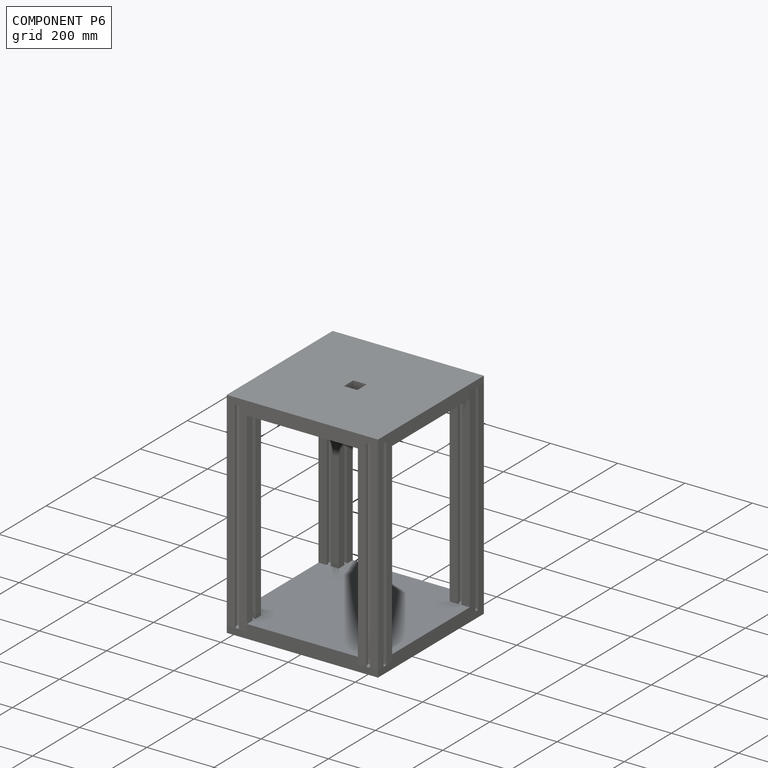
[diagram: component P6 — assembled]
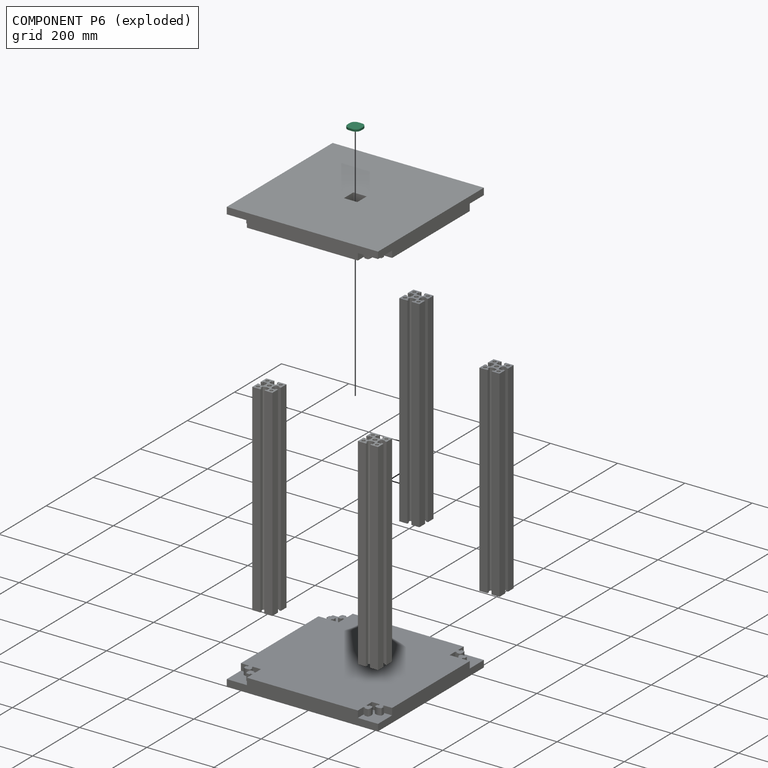
[diagram: component P6 — exploded]
COMPONENT P6 — recipe-attached (CADFS 00656256, mesh-verified: the recipe's output STEP matches this component's geometry to below the mesh-comparison resolution (tessellation chordal tolerance ~0.0853 mm)).
Held by: SLIDER mate "Slider 1" to P2; PLANAR mate "Planar 1" to P2.
Construction recipe (FeatureScript — the CAD program that rebuilds this solid; sketch coordinates are in the units given by the * unit suffixes, e.g. mm):

FeatureScript 1511;
import(path : "onshape/std/geometry.fs", version : "1511.0");
import(path : "onshape/std/common.fs", version : "1511.0");
const mm = millimeter;
const VERTEX = EntityType.VERTEX;
const EDGE = EntityType.EDGE;
const FACE = EntityType.FACE;
const BODY = EntityType.BODY;
function v(x, y){return vector(x, y);}
function OD(order){return orderDisambiguation(order);}
function OSD(set){return originalSetDisambiguation(set);}
function TD(topology){return topologyDisambiguation(topology);}
function TDD(query){return trueDependencyDisambiguation(query);}
function sQuery(a, b, c) {return sketchEntityQuery(a, b, c);}

annotation { "Feature Type Name" : "Feature", "Feature Type Description" : "" }
export const myFeature = defineFeature(function(context is Context, id is Id, definition is map)
    precondition{}
    {
        {
            var Q0;
            Q0=qCreatedBy(makeId("Top.planeOp"),FACE);
            var sketch = newSketch(context, id + "F0", { "sketchPlane" : qUnion([Q0])});
            skLineSegment(sketch, "E0.bottom", {"start": v(20, 20) * mm, "end": v(-20, 20) * mm});
            skLineSegment(sketch, "E0.top", {"start": v(20, -20) * mm, "end": v(-20, -20) * mm});
            skLineSegment(sketch, "E0.left", {"start": v(20, 20) * mm, "end": v(20, -20) * mm});
            skLineSegment(sketch, "E0.right", {"start": v(-20, 20) * mm, "end": v(-20, -20) * mm});
            skPoint(sketch, "E0.middle", {"position": v(0, 0) * mm});
            skSolve(sketch);
        }
        {
            var Q0;
            Q0=makeQuery(id+"F0.imprint","IMPRINT",FACE,{"disambiguationData":[TD([[makeQuery(id+"F0.imprint","IMPRINT",EDGE,{"derivedFrom":sQuery(id+"F0.wireOp",EDGE,"E0.bottom")}),1.0]])]});
            extrude(context, id + "F1", {"entities" : qUnion([Q0]), "depth" : 6 * mm, "offsetDistance" : 25 * mm});
        }
        {
            var Q0;
            Q0=makeQuery(id+"F1.opExtrude","SWEPT_EDGE",EDGE,{"disambiguationData":[OSD([sQuery(id+"F0.wireOp",EDGE,"E0.bottom"),sQuery(id+"F0.wireOp",EDGE,"E0.right")])]});
            var Q1;
            Q1=makeQuery(id+"F1.opExtrude","SWEPT_EDGE",EDGE,{"disambiguationData":[OSD([sQuery(id+"F0.wireOp",EDGE,"E0.bottom"),sQuery(id+"F0.wireOp",EDGE,"E0.left")])]});
            var Q2;
            Q2=makeQuery(id+"F1.opExtrude","SWEPT_EDGE",EDGE,{"disambiguationData":[OSD([sQuery(id+"F0.wireOp",EDGE,"E0.top"),sQuery(id+"F0.wireOp",EDGE,"E0.left")])]});
            var Q3;
            Q3=makeQuery(id+"F1.opExtrude","SWEPT_EDGE",EDGE,{"disambiguationData":[OSD([sQuery(id+"F0.wireOp",EDGE,"E0.top"),sQuery(id+"F0.wireOp",EDGE,"E0.right")])]});
            fillet(context, id + "F2", {"entities" : qUnion([Q0, Q1, Q2, Q3]), "radius" : 15 * mm, "tangentPropagation" : true, "allowEdgeOverflow" : false});
        }
        {
            var Q0;
            Q0=makeQuery(id+"F1.opExtrude","CAP_FACE",FACE,{"disambiguationData":[OSD([sQuery(id+"F0.wireOp",EDGE,"E0.bottom"),sQuery(id+"F0.wireOp",EDGE,"E0.top"),sQuery(id+"F0.wireOp",EDGE,"E0.left"),sQuery(id+"F0.wireOp",EDGE,"E0.right")])],"isStart":true});
            var sketch = newSketch(context, id + "F3", { "sketchPlane" : qUnion([Q0])});
            skCircle(sketch, "E1", {"center": v(0, 0) * mm, "radius": 1.5 * mm});
            skSolve(sketch);
        }
        {
            var Q0;
            Q0=makeQuery(id+"F3.imprint","IMPRINT",FACE,{"disambiguationData":[TD([[makeQuery(id+"F3.imprint","IMPRINT",EDGE,{"derivedFrom":sQuery(id+"F3.wireOp",EDGE,"E1")}),1.0]])]});
            extrude(context, id + "F4", {"entities" : qUnion([Q0]), "operationType" : NewBodyOperationType.REMOVE, "oppositeDirection" : true, "depth" : 2 * mm, "offsetDistance" : 25 * mm});
        }
        {
            var Q0;
            Q0=qCreatedBy(makeId("Front.planeOp"),FACE);
            var sketch = newSketch(context, id + "F5", { "sketchPlane" : qUnion([Q0])});
            skLineSegment(sketch, "E2", {"start": v(0, 2) * mm, "end": v(0, 0) * mm});
            skLineSegment(sketch, "E3", {"start": v(0, 0) * mm, "end": v(-15, 0) * mm});
            skLineSegment(sketch, "E4", {"start": v(-15, 0) * mm, "end": v(0, 2) * mm});
            skSolve(sketch);
        }
        {
            var Q0;
            Q0=makeQuery(id+"F5.imprint","IMPRINT",FACE,{"disambiguationData":[TD([[makeQuery(id+"F5.imprint","IMPRINT",EDGE,{"derivedFrom":sQuery(id+"F5.wireOp",EDGE,"E2")}),-1.0]])]});
            var Q1;
            Q1=sQuery(id+"F5.wireOp",EDGE,"E2");
            revolve(context, id + "F6", {"operationType" : NewBodyOperationType.REMOVE, "entities" : qUnion([Q0]), "axis" : qUnion([Q1]), "revolveType" : RevolveType.FULL, "oppositeDirection" : true});
        }
    });
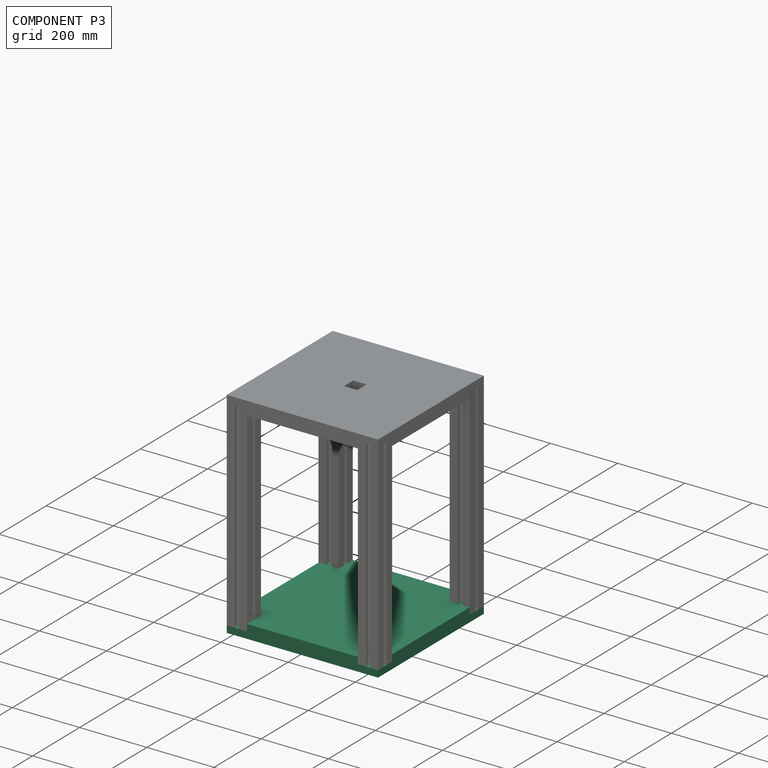
[diagram: component P3 — assembled]
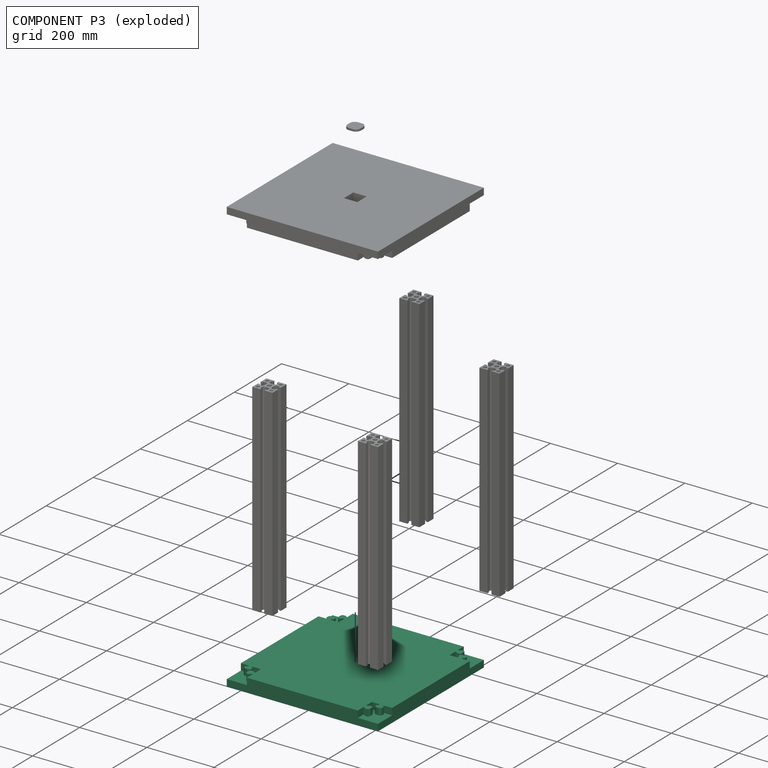
[diagram: component P3 — exploded]
COMPONENT P3 — recipe-attached (CADFS 00656254, mesh-verified: the recipe's output STEP matches this component's geometry to below the mesh-comparison resolution (tessellation chordal tolerance ~0.956 mm)).
Held by: PLANAR mate "Planar 2" to P4; PLANAR mate "Planar 5" to P0; PLANAR mate "Planar 8" to P1; PLANAR mate "Planar 16" to P4; PLANAR mate "Planar 11" to P5; PLANAR mate "Planar 17" to P0; PLANAR mate "Planar 9" to P1; PLANAR mate "Planar 19" to P5; PLANAR mate "Planar 3" to P4; PLANAR mate "Planar 6" to P0; PLANAR mate "Planar 18" to P1; PLANAR mate "Planar 12" to P5.
Construction recipe (FeatureScript — the CAD program that rebuilds this solid; sketch coordinates are in the units given by the * unit suffixes, e.g. mm):

FeatureScript 1511;
import(path : "onshape/std/geometry.fs", version : "1511.0");
import(path : "onshape/std/common.fs", version : "1511.0");
const mm = millimeter;
const VERTEX = EntityType.VERTEX;
const EDGE = EntityType.EDGE;
const FACE = EntityType.FACE;
const BODY = EntityType.BODY;
function v(x, y){return vector(x, y);}
function OD(order){return orderDisambiguation(order);}
function OSD(set){return originalSetDisambiguation(set);}
function TD(topology){return topologyDisambiguation(topology);}
function TDD(query){return trueDependencyDisambiguation(query);}
function sQuery(a, b, c) {return sketchEntityQuery(a, b, c);}

annotation { "Feature Type Name" : "Feature", "Feature Type Description" : "" }
export const myFeature = defineFeature(function(context is Context, id is Id, definition is map)
    precondition{}
    {
        {
            var Q0;
            Q0=qCreatedBy(makeId("Front.planeOp"),FACE);
            var sketch = newSketch(context, id + "F0", { "sketchPlane" : qUnion([Q0])});
            skLineSegment(sketch, "E0.bottom", {"start": v(225, 225) * mm, "end": v(-225, 225) * mm});
            skLineSegment(sketch, "E0.top", {"start": v(225, -225) * mm, "end": v(-225, -225) * mm});
            skLineSegment(sketch, "E0.left", {"start": v(225, 225) * mm, "end": v(225, -225) * mm});
            skLineSegment(sketch, "E0.right", {"start": v(-225, 225) * mm, "end": v(-225, -225) * mm});
            skPoint(sketch, "E0.middle", {"position": v(0, 0) * mm});
            skLineSegment(sketch, "E1", {"start": v(-225, 165) * mm, "end": v(-165, 165) * mm});
            skLineSegment(sketch, "E2", {"start": v(-165, 165) * mm, "end": v(-165, 225) * mm});
            skLineSegment(sketch, "E3.MirrorCS", {"start": v(-225, -165) * mm, "end": v(-165, -165) * mm});
            skLineSegment(sketch, "E4.MirrorCS", {"start": v(-165, -165) * mm, "end": v(-165, -225) * mm});
            skLineSegment(sketch, "E5.MirrorCS", {"start": v(165, 165) * mm, "end": v(165, 225) * mm});
            skLineSegment(sketch, "E6.MirrorCS", {"start": v(225, 165) * mm, "end": v(165, 165) * mm});
            skLineSegment(sketch, "E7.MirrorCS", {"start": v(225, -165) * mm, "end": v(165, -165) * mm});
            skLineSegment(sketch, "E8.MirrorCS", {"start": v(165, -165) * mm, "end": v(165, -225) * mm});
            skSolve(sketch);
        }
        {
            var Q0;
            {var subQ4=sQuery(id+"F0.wireOp",EDGE,"E1");Q0=makeQuery(id+"F0.imprint","IMPRINT",FACE,{"disambiguationData":[TD([[makeQuery(id+"F0.imprint","IMPRINT",EDGE,{"derivedFrom":subQ4}),-1.0]])]});}
            extrude(context, id + "F1", {"entities" : qUnion([Q0]), "depth" : 40 * mm, "offsetDistance" : 25 * mm});
        }
        {
            var Q0;
            Q0=makeQuery(id+"F1.opExtrude","CAP_FACE",FACE,{"disambiguationData":[OSD([sQuery(id+"F0.wireOp",EDGE,"E0.bottom"),sQuery(id+"F0.wireOp",EDGE,"E0.top"),sQuery(id+"F0.wireOp",EDGE,"E0.left"),sQuery(id+"F0.wireOp",EDGE,"E0.right"),sQuery(id+"F0.wireOp",EDGE,"E1"),sQuery(id+"F0.wireOp",EDGE,"E2"),sQuery(id+"F0.wireOp",EDGE,"E3.MirrorCS"),sQuery(id+"F0.wireOp",EDGE,"E4.MirrorCS"),sQuery(id+"F0.wireOp",EDGE,"E5.MirrorCS"),sQuery(id+"F0.wireOp",EDGE,"E6.MirrorCS"),sQuery(id+"F0.wireOp",EDGE,"E7.MirrorCS"),sQuery(id+"F0.wireOp",EDGE,"E8.MirrorCS")])],"isStart":false});
            var sketch = newSketch(context, id + "F2", { "sketchPlane" : qUnion([Q0])});
            skLineSegment(sketch, "E9", {"start": v(-201, 165) * mm, "end": v(-201, 171) * mm});
            skLineSegment(sketch, "E10", {"start": v(-201, 171) * mm, "end": v(-205, 171) * mm});
            skLineSegment(sketch, "E11", {"start": v(-205, 171) * mm, "end": v(-205, 181) * mm});
            skLineSegment(sketch, "E12", {"start": v(-189, 165) * mm, "end": v(-189, 171) * mm});
            skLineSegment(sketch, "E13", {"start": v(-189, 171) * mm, "end": v(-185, 171) * mm});
            skLineSegment(sketch, "E14", {"start": v(-185, 171) * mm, "end": v(-185, 181) * mm});
            skLineSegment(sketch, "E15", {"start": v(-165, 189) * mm, "end": v(-171, 189) * mm});
            skLineSegment(sketch, "E16", {"start": v(-201, 165) * mm, "end": v(-189, 165) * mm});
            skArc(sketch, "E17", {"start": v(-185, 181) * mm, "mid": v(-195, 183.68) * mm, "end": v(-205, 181) * mm});
            skLineSegment(sketch, "E18", {"start": v(-165, 201) * mm, "end": v(-171, 201) * mm});
            skLineSegment(sketch, "E19", {"start": v(-171, 201) * mm, "end": v(-171, 205) * mm});
            skLineSegment(sketch, "E20", {"start": v(-171, 205) * mm, "end": v(-181, 205) * mm});
            skLineSegment(sketch, "E21", {"start": v(-171, 189) * mm, "end": v(-171, 185) * mm});
            skLineSegment(sketch, "E22", {"start": v(-171, 185) * mm, "end": v(-181, 185) * mm});
            skLineSegment(sketch, "E23", {"start": v(-165, 201) * mm, "end": v(-165, 189) * mm});
            skArc(sketch, "E24", {"start": v(-181, 205) * mm, "mid": v(-183.68, 195) * mm, "end": v(-181, 185) * mm});
            skLineSegment(sketch, "E25.1.0", {"start": v(-185, -171) * mm, "end": v(-185, -181) * mm});
            skArc(sketch, "E25.1.1", {"start": v(-205, -181) * mm, "mid": v(-195, -183.68) * mm, "end": v(-185, -181) * mm});
            skLineSegment(sketch, "E25.1.2", {"start": v(-171, -205) * mm, "end": v(-181, -205) * mm});
            skLineSegment(sketch, "E25.1.3", {"start": v(-171, -185) * mm, "end": v(-181, -185) * mm});
            skArc(sketch, "E25.1.4", {"start": v(-181, -185) * mm, "mid": v(-183.68, -195) * mm, "end": v(-181, -205) * mm});
            skLineSegment(sketch, "E25.1.5", {"start": v(-205, -171) * mm, "end": v(-205, -181) * mm});
            skLineSegment(sketch, "E25.1.6", {"start": v(-201, -165) * mm, "end": v(-189, -165) * mm});
            skLineSegment(sketch, "E25.1.7", {"start": v(-165, -201) * mm, "end": v(-165, -189) * mm});
            skLineSegment(sketch, "E25.1.8", {"start": v(-165, -201) * mm, "end": v(-171, -201) * mm});
            skLineSegment(sketch, "E25.1.9", {"start": v(-171, -201) * mm, "end": v(-171, -205) * mm});
            skLineSegment(sketch, "E25.1.10", {"start": v(-165, -189) * mm, "end": v(-171, -189) * mm});
            skLineSegment(sketch, "E25.1.11", {"start": v(-171, -189) * mm, "end": v(-171, -185) * mm});
            skLineSegment(sketch, "E25.1.12", {"start": v(-189, -165) * mm, "end": v(-189, -171) * mm});
            skLineSegment(sketch, "E25.1.13", {"start": v(-201, -165) * mm, "end": v(-201, -171) * mm});
            skLineSegment(sketch, "E25.1.14", {"start": v(-201, -171) * mm, "end": v(-205, -171) * mm});
            skLineSegment(sketch, "E25.1.15", {"start": v(-189, -171) * mm, "end": v(-185, -171) * mm});
            skLineSegment(sketch, "E25.2.0", {"start": v(171, -185) * mm, "end": v(181, -185) * mm});
            skArc(sketch, "E25.2.1", {"start": v(181, -205) * mm, "mid": v(183.68, -195) * mm, "end": v(181, -185) * mm});
            skLineSegment(sketch, "E25.2.2", {"start": v(205, -171) * mm, "end": v(205, -181) * mm});
            skLineSegment(sketch, "E25.2.3", {"start": v(185, -171) * mm, "end": v(185, -181) * mm});
            skArc(sketch, "E25.2.4", {"start": v(185, -181) * mm, "mid": v(195, -183.68) * mm, "end": v(205, -181) * mm});
            skLineSegment(sketch, "E25.2.5", {"start": v(171, -205) * mm, "end": v(181, -205) * mm});
            skLineSegment(sketch, "E25.2.6", {"start": v(165, -201) * mm, "end": v(165, -189) * mm});
            skLineSegment(sketch, "E25.2.7", {"start": v(201, -165) * mm, "end": v(189, -165) * mm});
            skLineSegment(sketch, "E25.2.8", {"start": v(201, -165) * mm, "end": v(201, -171) * mm});
            skLineSegment(sketch, "E25.2.9", {"start": v(201, -171) * mm, "end": v(205, -171) * mm});
            skLineSegment(sketch, "E25.2.10", {"start": v(189, -165) * mm, "end": v(189, -171) * mm});
            skLineSegment(sketch, "E25.2.11", {"start": v(189, -171) * mm, "end": v(185, -171) * mm});
            skLineSegment(sketch, "E25.2.12", {"start": v(165, -189) * mm, "end": v(171, -189) * mm});
            skLineSegment(sketch, "E25.2.13", {"start": v(165, -201) * mm, "end": v(171, -201) * mm});
            skLineSegment(sketch, "E25.2.14", {"start": v(171, -201) * mm, "end": v(171, -205) * mm});
            skLineSegment(sketch, "E25.2.15", {"start": v(171, -189) * mm, "end": v(171, -185) * mm});
            skLineSegment(sketch, "E25.3.0", {"start": v(185, 171) * mm, "end": v(185, 181) * mm});
            skArc(sketch, "E25.3.1", {"start": v(205, 181) * mm, "mid": v(195, 183.68) * mm, "end": v(185, 181) * mm});
            skLineSegment(sketch, "E25.3.2", {"start": v(171, 205) * mm, "end": v(181, 205) * mm});
            skLineSegment(sketch, "E25.3.3", {"start": v(171, 185) * mm, "end": v(181, 185) * mm});
            skArc(sketch, "E25.3.4", {"start": v(181, 185) * mm, "mid": v(183.68, 195) * mm, "end": v(181, 205) * mm});
            skLineSegment(sketch, "E25.3.5", {"start": v(205, 171) * mm, "end": v(205, 181) * mm});
            skLineSegment(sketch, "E25.3.6", {"start": v(201, 165) * mm, "end": v(189, 165) * mm});
            skLineSegment(sketch, "E25.3.7", {"start": v(165, 201) * mm, "end": v(165, 189) * mm});
            skLineSegment(sketch, "E25.3.8", {"start": v(165, 201) * mm, "end": v(171, 201) * mm});
            skLineSegment(sketch, "E25.3.9", {"start": v(171, 201) * mm, "end": v(171, 205) * mm});
            skLineSegment(sketch, "E25.3.10", {"start": v(165, 189) * mm, "end": v(171, 189) * mm});
            skLineSegment(sketch, "E25.3.11", {"start": v(171, 189) * mm, "end": v(171, 185) * mm});
            skLineSegment(sketch, "E25.3.12", {"start": v(189, 165) * mm, "end": v(189, 171) * mm});
            skLineSegment(sketch, "E25.3.13", {"start": v(201, 165) * mm, "end": v(201, 171) * mm});
            skLineSegment(sketch, "E25.3.14", {"start": v(201, 171) * mm, "end": v(205, 171) * mm});
            skLineSegment(sketch, "E25.3.15", {"start": v(189, 171) * mm, "end": v(185, 171) * mm});
            skPoint(sketch, "E25.center", {"position": v(0, 0) * mm});
            skSolve(sketch);
        }
        {
            var Q0;
            Q0=makeQuery(id+"F2.imprint","IMPRINT",FACE,{"disambiguationData":[TD([[makeQuery(id+"F2.imprint","IMPRINT",EDGE,{"derivedFrom":sQuery(id+"F2.wireOp",EDGE,"E9")}),-1.0]])]});
            var Q1;
            Q1=makeQuery(id+"F2.imprint","IMPRINT",FACE,{"disambiguationData":[TD([[makeQuery(id+"F2.imprint","IMPRINT",EDGE,{"derivedFrom":sQuery(id+"F2.wireOp",EDGE,"E15")}),-1.0]])]});
            var Q2;
            Q2=makeQuery(id+"F2.imprint","IMPRINT",FACE,{"disambiguationData":[TD([[makeQuery(id+"F2.imprint","IMPRINT",EDGE,{"derivedFrom":sQuery(id+"F2.wireOp",EDGE,"E25.3.2")}),-1.0]])]});
            var Q3;
            Q3=makeQuery(id+"F2.imprint","IMPRINT",FACE,{"disambiguationData":[TD([[makeQuery(id+"F2.imprint","IMPRINT",EDGE,{"derivedFrom":sQuery(id+"F2.wireOp",EDGE,"E25.3.0")}),-1.0]])]});
            var Q4;
            Q4=makeQuery(id+"F2.imprint","IMPRINT",FACE,{"disambiguationData":[TD([[makeQuery(id+"F2.imprint","IMPRINT",EDGE,{"derivedFrom":sQuery(id+"F2.wireOp",EDGE,"E25.2.2")}),-1.0]])]});
            var Q5;
            Q5=makeQuery(id+"F2.imprint","IMPRINT",FACE,{"disambiguationData":[TD([[makeQuery(id+"F2.imprint","IMPRINT",EDGE,{"derivedFrom":sQuery(id+"F2.wireOp",EDGE,"E25.2.0")}),-1.0]])]});
            var Q6;
            Q6=makeQuery(id+"F2.imprint","IMPRINT",FACE,{"disambiguationData":[TD([[makeQuery(id+"F2.imprint","IMPRINT",EDGE,{"derivedFrom":sQuery(id+"F2.wireOp",EDGE,"E25.1.2")}),-1.0]])]});
            var Q7;
            Q7=makeQuery(id+"F2.imprint","IMPRINT",FACE,{"disambiguationData":[TD([[makeQuery(id+"F2.imprint","IMPRINT",EDGE,{"derivedFrom":sQuery(id+"F2.wireOp",EDGE,"E25.1.0")}),-1.0]])]});
            var Q8;
            Q8=makeQuery(id+"F1.opExtrude","CAP_FACE",FACE,{"disambiguationData":[OSD([sQuery(id+"F0.wireOp",EDGE,"E0.bottom"),sQuery(id+"F0.wireOp",EDGE,"E0.top"),sQuery(id+"F0.wireOp",EDGE,"E0.left"),sQuery(id+"F0.wireOp",EDGE,"E0.right"),sQuery(id+"F0.wireOp",EDGE,"E1"),sQuery(id+"F0.wireOp",EDGE,"E2"),sQuery(id+"F0.wireOp",EDGE,"E3.MirrorCS"),sQuery(id+"F0.wireOp",EDGE,"E4.MirrorCS"),sQuery(id+"F0.wireOp",EDGE,"E5.MirrorCS"),sQuery(id+"F0.wireOp",EDGE,"E6.MirrorCS"),sQuery(id+"F0.wireOp",EDGE,"E7.MirrorCS"),sQuery(id+"F0.wireOp",EDGE,"E8.MirrorCS")])],"isStart":true});
            extrude(context, id + "F3", {"entities" : qUnion([Q0, Q1, Q2, Q3, Q4, Q5, Q6, Q7]), "operationType" : NewBodyOperationType.ADD, "endBound" : BoundingType.UP_TO_SURFACE, "oppositeDirection" : true, "depth" : 25 * mm, "endBoundEntityFace" : qUnion([Q8]), "offsetDistance" : 25 * mm});
        }
        {
            var Q0;
            {var subQ0=sQuery(id+"F0.wireOp",EDGE,"E8.MirrorCS");var subQ1=sQuery(id+"F0.wireOp",EDGE,"E7.MirrorCS");var subQ2=sQuery(id+"F0.wireOp",EDGE,"E6.MirrorCS");var subQ3=sQuery(id+"F0.wireOp",EDGE,"E5.MirrorCS");var subQ4=sQuery(id+"F0.wireOp",EDGE,"E4.MirrorCS");var subQ5=sQuery(id+"F0.wireOp",EDGE,"E3.MirrorCS");var subQ6=sQuery(id+"F0.wireOp",EDGE,"E2");var subQ7=sQuery(id+"F0.wireOp",EDGE,"E1");var subQ8=sQuery(id+"F0.wireOp",EDGE,"E0.right");var subQ9=sQuery(id+"F0.wireOp",EDGE,"E0.left");var subQ10=sQuery(id+"F0.wireOp",EDGE,"E0.top");var subQ11=sQuery(id+"F0.wireOp",EDGE,"E0.bottom");Q0=makeQuery(id+"F3.boolean.opBoolean","MERGE",FACE,{"derivedFrom":[makeQuery(id+"F1.opExtrude","CAP_FACE",FACE,{"disambiguationData":[OSD([subQ11,subQ10,subQ9,subQ8,subQ7,subQ6,subQ5,subQ4,subQ3,subQ2,subQ1,subQ0])],"isStart":true}),makeQuery(id+"F3.opExtrude","CAP_FACE",FACE,{"disambiguationData":[OSD([subQ11,subQ10,subQ9,subQ8,subQ7,subQ6,subQ5,subQ4,subQ3,subQ2,subQ1,subQ0]),OD(0.0)],"isStart":false}),makeQuery(id+"F3.opExtrude","CAP_FACE",FACE,{"disambiguationData":[OSD([subQ11,subQ10,subQ9,subQ8,subQ7,subQ6,subQ5,subQ4,subQ3,subQ2,subQ1,subQ0]),OD(1.0)],"isStart":false}),makeQuery(id+"F3.opExtrude","CAP_FACE",FACE,{"disambiguationData":[OSD([subQ11,subQ10,subQ9,subQ8,subQ7,subQ6,subQ5,subQ4,subQ3,subQ2,subQ1,subQ0]),OD(2.0)],"isStart":false}),makeQuery(id+"F3.opExtrude","CAP_FACE",FACE,{"disambiguationData":[OSD([subQ11,subQ10,subQ9,subQ8,subQ7,subQ6,subQ5,subQ4,subQ3,subQ2,subQ1,subQ0]),OD(3.0)],"isStart":false}),makeQuery(id+"F3.opExtrude","CAP_FACE",FACE,{"disambiguationData":[OSD([subQ11,subQ10,subQ9,subQ8,subQ7,subQ6,subQ5,subQ4,subQ3,subQ2,subQ1,subQ0]),OD(4.0)],"isStart":false}),makeQuery(id+"F3.opExtrude","CAP_FACE",FACE,{"disambiguationData":[OSD([subQ11,subQ10,subQ9,subQ8,subQ7,subQ6,subQ5,subQ4,subQ3,subQ2,subQ1,subQ0]),OD(5.0)],"isStart":false}),makeQuery(id+"F3.opExtrude","CAP_FACE",FACE,{"disambiguationData":[OSD([subQ11,subQ10,subQ9,subQ8,subQ7,subQ6,subQ5,subQ4,subQ3,subQ2,subQ1,subQ0]),OD(6.0)],"isStart":false}),makeQuery(id+"F3.opExtrude","CAP_FACE",FACE,{"disambiguationData":[OSD([subQ11,subQ10,subQ9,subQ8,subQ7,subQ6,subQ5,subQ4,subQ3,subQ2,subQ1,subQ0]),OD(7.0)],"isStart":false})]});}
            var sketch = newSketch(context, id + "F4", { "sketchPlane" : qUnion([Q0])});
            skLineSegment(sketch, "E26.bottom", {"start": v(225, 225) * mm, "end": v(-225, 225) * mm});
            skLineSegment(sketch, "E26.top", {"start": v(225, -225) * mm, "end": v(-225, -225) * mm});
            skLineSegment(sketch, "E26.left", {"start": v(225, 225) * mm, "end": v(225, -225) * mm});
            skLineSegment(sketch, "E26.right", {"start": v(-225, 225) * mm, "end": v(-225, -225) * mm});
            skPoint(sketch, "E26.middle", {"position": v(0, 0) * mm});
            skLineSegment(sketch, "E27", {"start": v(-225, 165) * mm, "end": v(-165, 165) * mm});
            skLineSegment(sketch, "E28", {"start": v(-165, 165) * mm, "end": v(-165, 225) * mm});
            skLineSegment(sketch, "E29.MirrorCS", {"start": v(-225, -165) * mm, "end": v(-165, -165) * mm});
            skLineSegment(sketch, "E30.MirrorCS", {"start": v(-165, -165) * mm, "end": v(-165, -225) * mm});
            skLineSegment(sketch, "E31.MirrorCS", {"start": v(165, 165) * mm, "end": v(165, 225) * mm});
            skLineSegment(sketch, "E32.MirrorCS", {"start": v(225, 165) * mm, "end": v(165, 165) * mm});
            skLineSegment(sketch, "E33.MirrorCS", {"start": v(225, -165) * mm, "end": v(165, -165) * mm});
            skLineSegment(sketch, "E34.MirrorCS", {"start": v(165, -165) * mm, "end": v(165, -225) * mm});
            skSolve(sketch);
        }
        {
            var Q0;
            {var subQ4=sQuery(id+"F4.wireOp",EDGE,"E31.MirrorCS");var subQ6=sQuery(id+"F4.wireOp",EDGE,"E26.bottom");var subQ7=makeQuery(id+"F4.imprint","INTERSECT",VERTEX,{"derivedFrom":[subQ6,subQ4]});var subQ29=sQuery(id+"F4.wireOp",EDGE,"E28");var subQ32=makeQuery(id+"F4.imprint","INTERSECT",VERTEX,{"derivedFrom":[subQ6,subQ29]});Q0=makeQuery(id+"F4.imprint","IMPRINT",FACE,{"disambiguationData":[TD([[makeQuery(id+"F4.imprint","IMPRINT",EDGE,{"disambiguationData":[TD([[subQ7,1.0],[subQ32,-1.0]])],"derivedFrom":subQ6}),-1.0]])]});}
            var Q1;
            {var subQ2=sQuery(id+"F4.wireOp",EDGE,"E26.left");var subQ5=sQuery(id+"F4.wireOp",EDGE,"E34.MirrorCS");var subQ6=sQuery(id+"F4.wireOp",EDGE,"E26.top");var subQ7=makeQuery(id+"F4.imprint","INTERSECT",VERTEX,{"derivedFrom":[subQ6,subQ5]});var subQ11=makeQuery(id+"F4.imprint","INTERSECT",VERTEX,{"derivedFrom":[subQ6,subQ2]});Q1=makeQuery(id+"F4.imprint","IMPRINT",FACE,{"disambiguationData":[TD([[makeQuery(id+"F4.imprint","IMPRINT",EDGE,{"disambiguationData":[TD([[subQ7,1.0],[subQ11,-1.0]])],"derivedFrom":subQ6}),-1.0]])]});}
            var Q2;
            {var subQ1=sQuery(id+"F4.wireOp",EDGE,"E30.MirrorCS");var subQ5=sQuery(id+"F4.wireOp",EDGE,"E26.top");var subQ6=makeQuery(id+"F4.imprint","INTERSECT",VERTEX,{"derivedFrom":[subQ5,subQ1]});var subQ8=sQuery(id+"F4.wireOp",EDGE,"E26.right");var subQ9=makeQuery(id+"F4.imprint","INTERSECT",VERTEX,{"derivedFrom":[subQ5,subQ8]});Q2=makeQuery(id+"F4.imprint","IMPRINT",FACE,{"disambiguationData":[TD([[makeQuery(id+"F4.imprint","IMPRINT",EDGE,{"disambiguationData":[TD([[subQ6,-1.0],[subQ9,1.0]])],"derivedFrom":subQ5}),-1.0]])]});}
            var Q3;
            {var subQ2=sQuery(id+"F4.wireOp",EDGE,"E26.right");var subQ4=sQuery(id+"F4.wireOp",EDGE,"E26.bottom");var subQ5=makeQuery(id+"F4.imprint","INTERSECT",VERTEX,{"derivedFrom":[subQ4,subQ2]});var subQ6=sQuery(id+"F4.wireOp",EDGE,"E28");var subQ7=makeQuery(id+"F4.imprint","INTERSECT",VERTEX,{"derivedFrom":[subQ4,subQ6]});Q3=makeQuery(id+"F4.imprint","IMPRINT",FACE,{"disambiguationData":[TD([[makeQuery(id+"F4.imprint","IMPRINT",EDGE,{"disambiguationData":[TD([[subQ7,-1.0],[subQ5,1.0]])],"derivedFrom":subQ4}),1.0]])]});}
            var Q4;
            {var subQ3=sQuery(id+"F4.wireOp",EDGE,"E26.left");var subQ5=sQuery(id+"F4.wireOp",EDGE,"E31.MirrorCS");var subQ6=sQuery(id+"F4.wireOp",EDGE,"E26.bottom");var subQ7=makeQuery(id+"F4.imprint","INTERSECT",VERTEX,{"derivedFrom":[subQ6,subQ5]});var subQ8=makeQuery(id+"F4.imprint","INTERSECT",VERTEX,{"derivedFrom":[subQ6,subQ3]});Q4=makeQuery(id+"F4.imprint","IMPRINT",FACE,{"disambiguationData":[TD([[makeQuery(id+"F4.imprint","IMPRINT",EDGE,{"disambiguationData":[TD([[subQ7,1.0],[subQ8,-1.0]])],"derivedFrom":subQ6}),1.0]])]});}
            extrude(context, id + "F5", {"entities" : qUnion([Q0, Q1, Q2, Q3, Q4]), "operationType" : NewBodyOperationType.ADD, "oppositeDirection" : true, "depth" : 20 * mm, "offsetDistance" : 25 * mm});
        }
    });
PROVENANCE & LICENSES
Assembly (occurrences, transforms, mates, per-part STEP geometry): AutoMate dataset, Zenodo record 7776208, CC0.
Construction recipes: CADFS (HuggingFace VladPyatov/CADFS, CC-BY-4.0, layered over the ABC dataset), FeatureScript reconstruction programs keyed by ABC model id.
Join: ABC meta listings map ABC model id -> Onshape documentId; within a shared document, parts are matched by geometric signature (bounding-box dims + volume at 0.1% relative tolerance, exact B-rep face/solid counts).
Verification: 7 of this assembly's 7 components carry a recipe attachment, and every attachment is mesh-verified: the CADFS STEP and the AutoMate member STEP were compared as meshes in their shared local frame (symmetric sampled-point-to-mesh distance); worst across the 7 attachments: below the mesh-comparison resolution (tessellation chordal tolerance ~0.956 mm) on a 638 mm part.
Renders: orthographic iso camera (az 35 / el 25); the floor grid conveys scale (grid pitch printed in each image; no ruler). In the exploded view each component is displaced by its stored offset vector: the offsets alone carry the explosion direction (mate normal/axis signs are not orientation cues and do not encode it), and separation distances are assigned per mate-chain, not proportionally to assembly-order depth.
